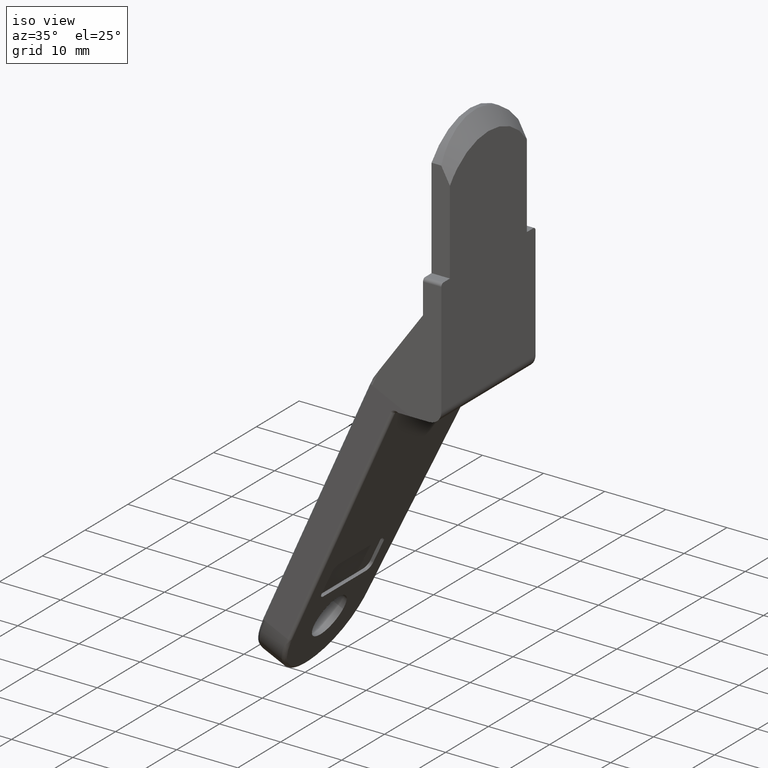
[diagram: clean part render]
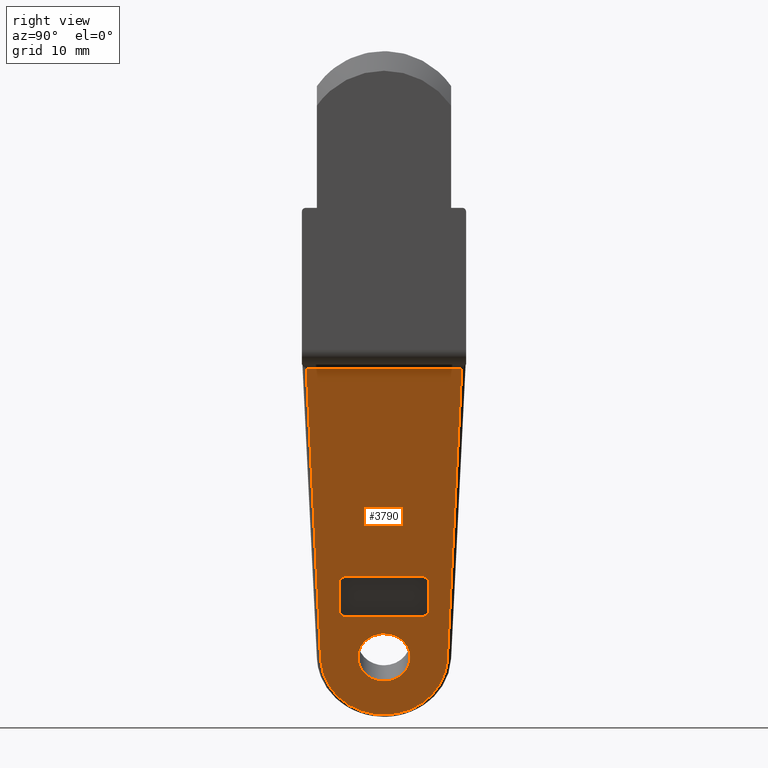
[diagram: tour spotlight — one face highlighted and labeled with its STEP entity id]
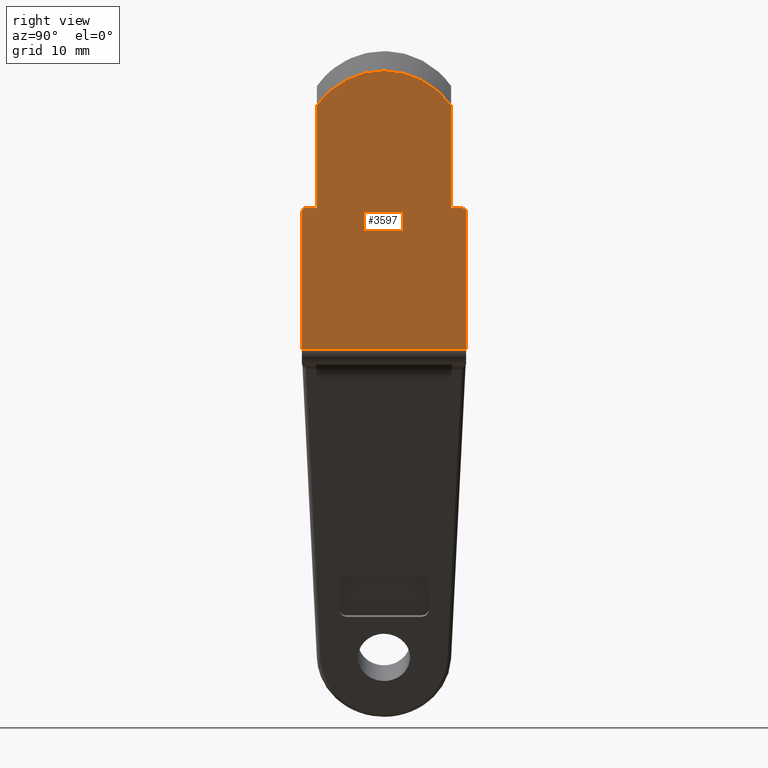
[diagram: tour spotlight — one face highlighted and labeled with its STEP entity id]
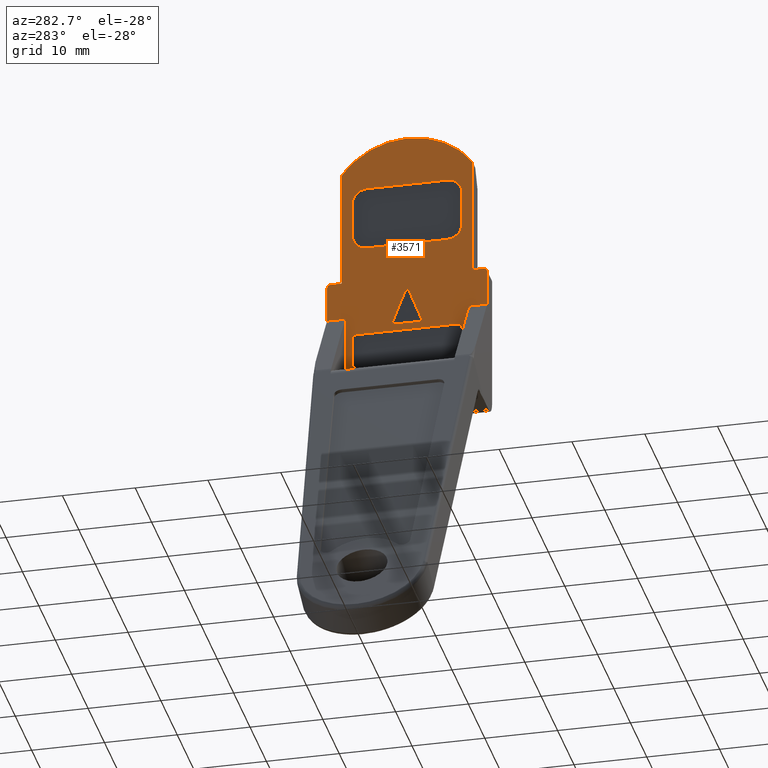
[diagram: tour spotlight — one face highlighted and labeled with its STEP entity id]
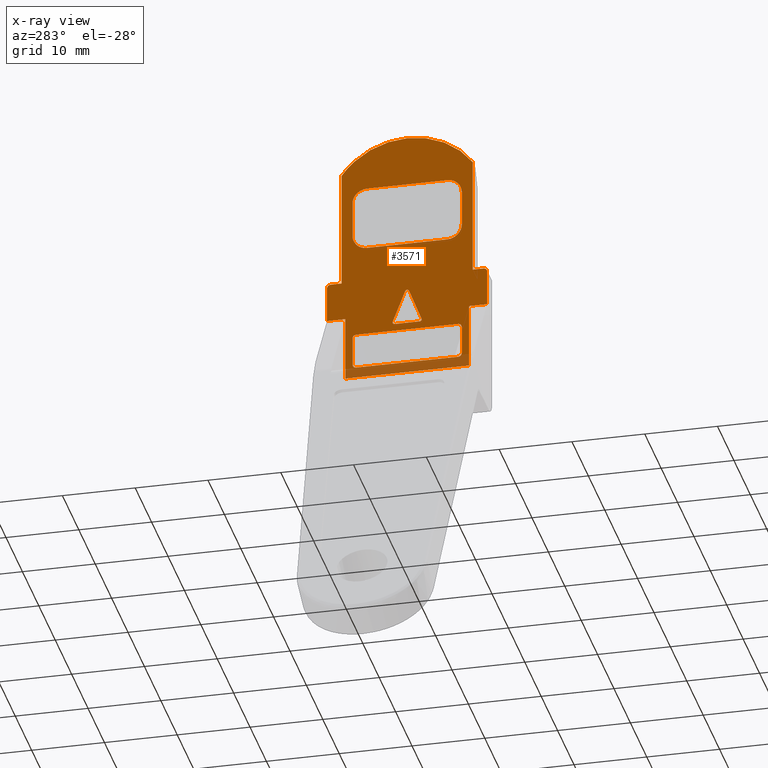
[diagram: x-ray of the same camera — body ghosted, this tour face saturated]
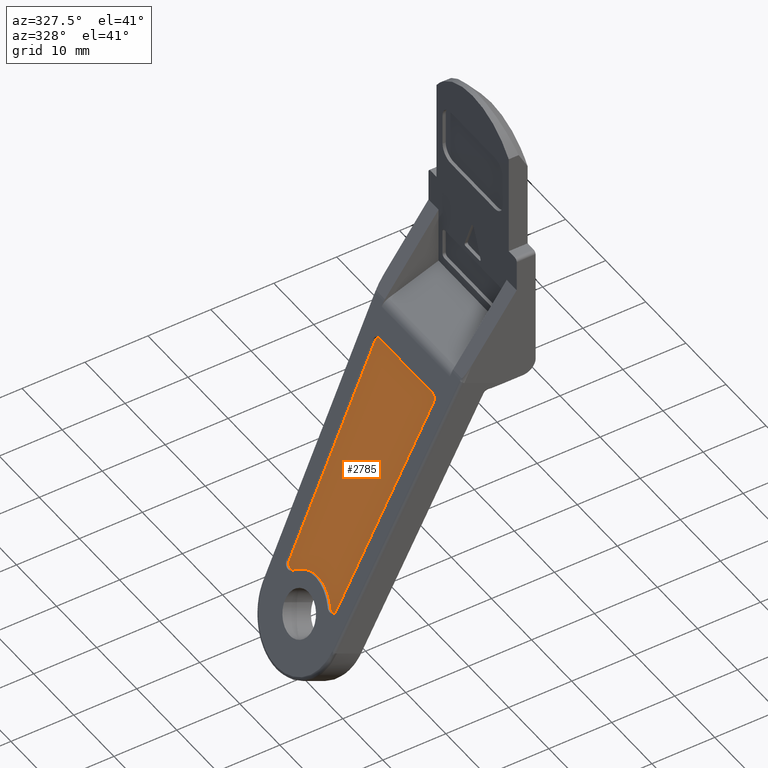
[diagram: tour spotlight — one face highlighted and labeled with its STEP entity id]
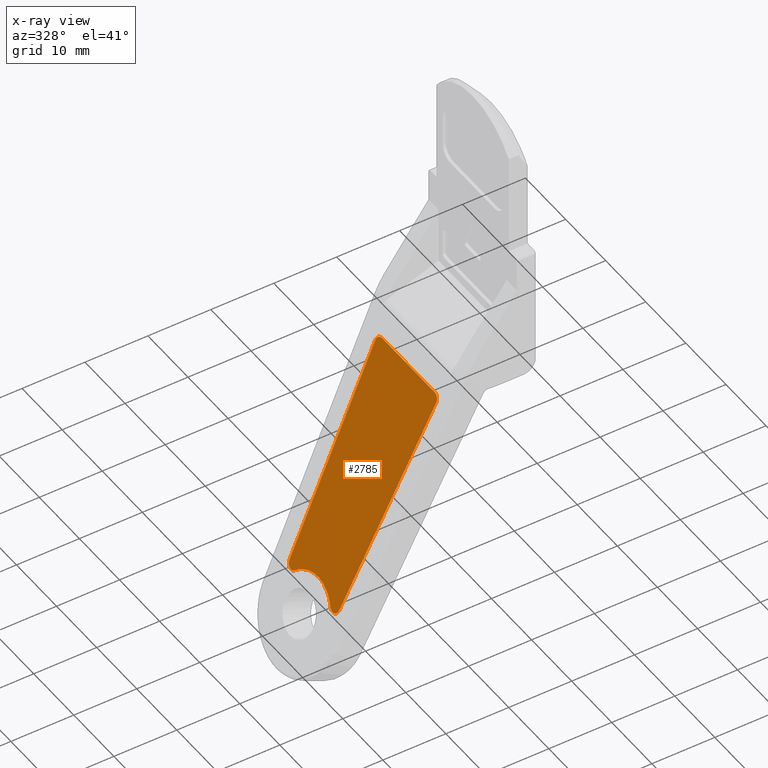
[diagram: x-ray of the same camera — body ghosted, this tour face saturated]
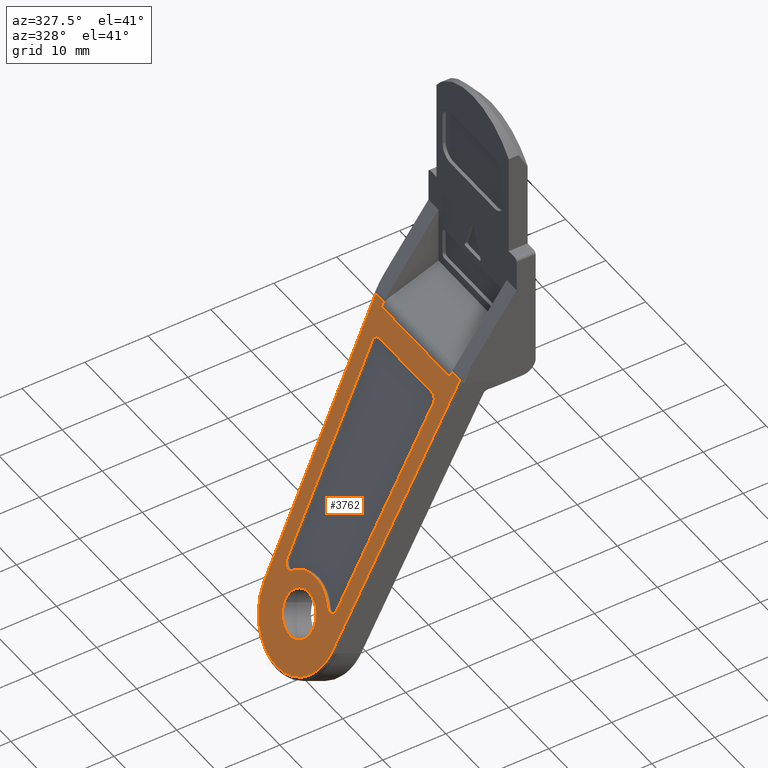
[diagram: tour spotlight — one face highlighted and labeled with its STEP entity id]
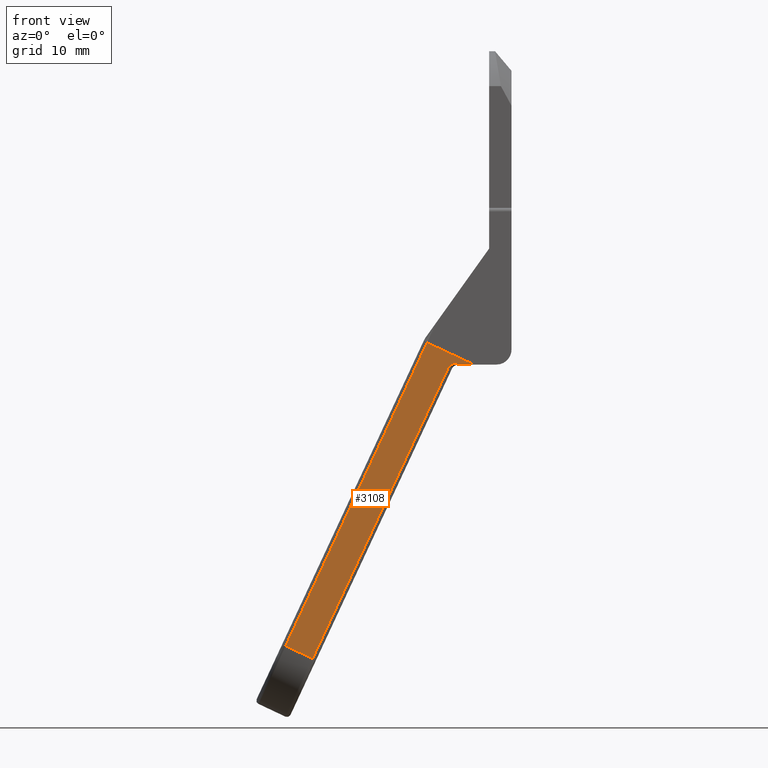
[diagram: tour spotlight — one face highlighted and labeled with its STEP entity id]
A machine part: a face-by-face anatomy tour. The part has 87 B-rep faces; the first image is the clean iso view, then the 6 largest visible faces are spotlighted one at a time (largest first), each with its STEP entity span.

Face 1 — right view, entity #3790. In plain terms, the highlighted face is a freeform B-spline surface patch.
Definition (entity closure, byte-faithful):
#96=CARTESIAN_POINT('',(-26.012490909142961,-3.499866730721196,-70.216601734261687));
#97=VERTEX_POINT('',#96);
#103=CARTESIAN_POINT('',(-27.504562791070779,-2.842171E-014,-73.416360239026375));
#104=VERTEX_POINT('',#103);
#105=CARTESIAN_POINT('',(-27.504562791070779,-2.842171E-014,-73.416360239026375));
#106=CARTESIAN_POINT('',(-27.504562791070779,-3.500000000000028,-73.416360239026361));
#107=CARTESIAN_POINT('',(-26.025398885637799,-3.500000000000029,-70.244282979427496));
#108=CARTESIAN_POINT('',(-26.018944774430892,-3.500000000000030,-70.230442093157109));
#109=CARTESIAN_POINT('',(-26.012490909142965,-3.499866730721196,-70.216601734261687));
#117=(BOUNDED_CURVE()B_SPLINE_CURVE(2,(#105,#106,#107,#108,#109),.UNSPECIFIED.,.F.,.U.)B_SPLINE_CURVE_WITH_KNOTS((3,2,3),(0.500000000000000,0.750000000000000,0.751539894374566),.UNSPECIFIED.)CURVE()GEOMETRIC_REPRESENTATION_ITEM()RATIONAL_B_SPLINE_CURVE((1.0,0.707106781186547,1.0,0.998195901520002,0.996414028008809))REPRESENTATION_ITEM(''));
#118=EDGE_CURVE('',#104,#97,#117,.T.);
#120=CARTESIAN_POINT('',(-26.209004546041339,3.472931748367588,-70.638026592262094));
#121=VERTEX_POINT('',#120);
#122=CARTESIAN_POINT('',(-26.209004546041349,3.472931748367588,-70.638026592262094));
#123=CARTESIAN_POINT('',(-27.504562791070786,3.089445100213763,-73.416360239026375));
#124=CARTESIAN_POINT('',(-27.504562791070779,-2.842171E-014,-73.416360239026375));
#132=(BOUNDED_CURVE()B_SPLINE_CURVE(2,(#122,#123,#124),.UNSPECIFIED.,.F.,.U.)B_SPLINE_CURVE_WITH_KNOTS((3,3),(0.271473928987601,0.500000000000000),.UNSPECIFIED.)CURVE()GEOMETRIC_REPRESENTATION_ITEM()RATIONAL_B_SPLINE_CURVE((0.954005430241922,0.732265053913548,1.0))REPRESENTATION_ITEM(''));
#133=EDGE_CURVE('',#121,#104,#132,.T.);
#183=CARTESIAN_POINT('',(-24.546234980204812,-2.842171E-014,-67.072205719828631));
#184=VERTEX_POINT('',#183);
#185=CARTESIAN_POINT('',(-24.546234980204812,-2.842171E-014,-67.072205719828631));
#186=CARTESIAN_POINT('',(-24.546234980204812,3.499999999999972,-67.072205719828631));
#187=CARTESIAN_POINT('',(-26.025398885637799,3.499999999999972,-70.244282979427496));
#188=CARTESIAN_POINT('',(-26.117558085650362,3.499999999999971,-70.441919023377011));
#189=CARTESIAN_POINT('',(-26.209004546041342,3.472931748367588,-70.638026592262094));
#197=(BOUNDED_CURVE()B_SPLINE_CURVE(2,(#185,#186,#187,#188,#189),.UNSPECIFIED.,.F.,.U.)B_SPLINE_CURVE_WITH_KNOTS((3,2,3),(0.0,0.250000000000000,0.271473928987601),.UNSPECIFIED.)CURVE()GEOMETRIC_REPRESENTATION_ITEM()RATIONAL_B_SPLINE_CURVE((1.0,0.707106781186547,1.0,0.974841727273000,0.954005430241922))REPRESENTATION_ITEM(''));
#198=EDGE_CURVE('',#184,#121,#197,.T.);
#200=CARTESIAN_POINT('',(-26.012490909142961,-3.499866730721196,-70.216601734261687));
#201=CARTESIAN_POINT('',(-24.546234980204808,-3.469589236302831,-67.072205719828631));
#202=CARTESIAN_POINT('',(-24.546234980204812,-2.842171E-014,-67.072205719828631));
#210=(BOUNDED_CURVE()B_SPLINE_CURVE(2,(#200,#201,#202),.UNSPECIFIED.,.F.,.U.)B_SPLINE_CURVE_WITH_KNOTS((3,3),(0.751539894374565,1.0),.UNSPECIFIED.)CURVE()GEOMETRIC_REPRESENTATION_ITEM()RATIONAL_B_SPLINE_CURVE((0.996414028008811,0.708910879666544,1.0))REPRESENTATION_ITEM(''));
#211=EDGE_CURVE('',#97,#184,#210,.T.);
#824=CARTESIAN_POINT('',(-7.994726999999900,-10.419376496762281,-31.577382000000100));
#825=VERTEX_POINT('',#824);
#879=CARTESIAN_POINT('',(-26.186128600836650,-8.491487356595801,-70.588968969027192));
#880=VERTEX_POINT('',#879);
#896=CARTESIAN_POINT('',(-7.994726999999900,-10.419376496762281,-31.577382000000100));
#897=CARTESIAN_POINT('',(-26.186128600836650,-8.491487356595801,-70.588968969027192));
#898=QUASI_UNIFORM_CURVE('',1,(#896,#897),.UNSPECIFIED.,.F.,.U.);
#899=EDGE_CURVE('',#825,#880,#898,.T.);
#935=CARTESIAN_POINT('',(-26.186128600836650,8.491487356595739,-70.588968969027192));
#936=VERTEX_POINT('',#935);
#950=CARTESIAN_POINT('',(-26.186128600836629,-8.491487356595799,-70.588968969027206));
#951=CARTESIAN_POINT('',(-29.617654084546434,-8.127821001500655,-77.947899181310547));
#952=CARTESIAN_POINT('',(-29.617654084546430,-2.842171E-014,-77.947899181310547));
#953=CARTESIAN_POINT('',(-29.617654084546434,8.127821001500596,-77.947899181310547));
#954=CARTESIAN_POINT('',(-26.186128600836629,8.491487356595743,-70.588968969027206));
#962=(BOUNDED_CURVE()B_SPLINE_CURVE(2,(#950,#951,#952,#953,#954),.UNSPECIFIED.,.F.,.U.)B_SPLINE_CURVE_WITH_KNOTS((3,2,3),(0.0,0.500000000000000,1.0),.UNSPECIFIED.)CURVE()GEOMETRIC_REPRESENTATION_ITEM()RATIONAL_B_SPLINE_CURVE((1.0,0.722752862704322,1.0,0.722752862704322,1.0))REPRESENTATION_ITEM(''));
#963=EDGE_CURVE('',#880,#936,#962,.T.);
#1000=CARTESIAN_POINT('',(-7.994726999999900,10.419376496784260,-31.577382000000100));
#1001=VERTEX_POINT('',#1000);
#1011=CARTESIAN_POINT('',(-26.186128600836650,8.491487356595739,-70.588968969027192));
#1012=CARTESIAN_POINT('',(-7.994726999999900,10.419376496784260,-31.577382000000100));
#1013=QUASI_UNIFORM_CURVE('',1,(#1011,#1012),.UNSPECIFIED.,.F.,.U.);
#1014=EDGE_CURVE('',#936,#1001,#1013,.T.);
#2431=CARTESIAN_POINT('',(-21.376598039991350,6.0,-60.274897306402600));
#2432=VERTEX_POINT('',#2431);
#2433=CARTESIAN_POINT('',(-23.067071074771800,5.999999999999901,-63.900128460229801));
#2434=VERTEX_POINT('',#2433);
#2435=CARTESIAN_POINT('',(-21.376598039991350,6.0,-60.274897306402600));
#2436=CARTESIAN_POINT('',(-23.067071074771800,5.999999999999901,-63.900128460229801));
#2437=QUASI_UNIFORM_CURVE('',1,(#2435,#2436),.UNSPECIFIED.,.F.,.U.);
#2438=EDGE_CURVE('',#2432,#2434,#2437,.T.);
#2468=CARTESIAN_POINT('',(-20.953979781296098,5.0,-59.368589517945800));
#2469=VERTEX_POINT('',#2468);
#2470=CARTESIAN_POINT('',(-20.953979781296209,5.0,-59.368589517945793));
#2471=CARTESIAN_POINT('',(-20.953979781296209,6.0,-59.368589517945800));
#2472=CARTESIAN_POINT('',(-21.376598039991350,6.0,-60.274897306402600));
#2480=(BOUNDED_CURVE()B_SPLINE_CURVE(2,(#2470,#2471,#2472),.UNSPECIFIED.,.F.,.U.)CURVE()GEOMETRIC_REPRESENTATION_ITEM()QUASI_UNIFORM_CURVE()RATIONAL_B_SPLINE_CURVE((1.0,0.707106781186548,1.0))REPRESENTATION_ITEM(''));
#2481=EDGE_CURVE('',#2469,#2432,#2480,.T.);
#2498=CARTESIAN_POINT('',(-20.953979781296098,-5.0,-59.368589517945800));
#2499=VERTEX_POINT('',#2498);
#2500=CARTESIAN_POINT('',(-20.953979781296098,-5.0,-59.368589517945800));
#2501=CARTESIAN_POINT('',(-20.953979781296098,5.0,-59.368589517945800));
#2502=QUASI_UNIFORM_CURVE('',1,(#2500,#2501),.UNSPECIFIED.,.F.,.U.);
#2503=EDGE_CURVE('',#2499,#2469,#2502,.T.);
#2529=CARTESIAN_POINT('',(-21.376598039991350,-6.0,-60.274897306402600));
#2530=VERTEX_POINT('',#2529);
#2531=CARTESIAN_POINT('',(-21.376598039991350,-6.0,-60.274897306402600));
#2532=CARTESIAN_POINT('',(-20.953979781296209,-6.0,-59.368589517945800));
#2533=CARTESIAN_POINT('',(-20.953979781296209,-5.0,-59.368589517945793));
#2541=(BOUNDED_CURVE()B_SPLINE_CURVE(2,(#2531,#2532,#2533),.UNSPECIFIED.,.F.,.U.)CURVE()GEOMETRIC_REPRESENTATION_ITEM()QUASI_UNIFORM_CURVE()RATIONAL_B_SPLINE_CURVE((1.0,0.707106781186548,1.0))REPRESENTATION_ITEM(''));
#2542=EDGE_CURVE('',#2530,#2499,#2541,.T.);
#2559=CARTESIAN_POINT('',(-23.067071074771899,-6.0,-63.900128460229801));
#2560=VERTEX_POINT('',#2559);
#2561=CARTESIAN_POINT('',(-23.067071074771899,-6.0,-63.900128460229801));
#2562=CARTESIAN_POINT('',(-21.376598039991350,-6.0,-60.274897306402600));
#2563=QUASI_UNIFORM_CURVE('',1,(#2561,#2562),.UNSPECIFIED.,.F.,.U.);
#2564=EDGE_CURVE('',#2560,#2530,#2563,.T.);
#2590=CARTESIAN_POINT('',(-23.489689333466949,-5.0,-64.806436248686694));
#2591=VERTEX_POINT('',#2590);
#2592=CARTESIAN_POINT('',(-23.489689333467041,-5.0,-64.806436248686623));
#2593=CARTESIAN_POINT('',(-23.489689333467044,-6.0,-64.806436248686623));
#2594=CARTESIAN_POINT('',(-23.067071074771899,-6.0,-63.900128460229801));
#2602=(BOUNDED_CURVE()B_SPLINE_CURVE(2,(#2592,#2593,#2594),.UNSPECIFIED.,.F.,.U.)CURVE()GEOMETRIC_REPRESENTATION_ITEM()QUASI_UNIFORM_CURVE()RATIONAL_B_SPLINE_CURVE((1.0,0.707106781186548,1.0))REPRESENTATION_ITEM(''));
#2603=EDGE_CURVE('',#2591,#2560,#2602,.T.);
#2620=CARTESIAN_POINT('',(-23.489689333466949,5.0,-64.806436248686694));
#2621=VERTEX_POINT('',#2620);
#2622=CARTESIAN_POINT('',(-23.489689333466949,5.0,-64.806436248686694));
#2623=CARTESIAN_POINT('',(-23.489689333466949,-5.0,-64.806436248686694));
#2624=QUASI_UNIFORM_CURVE('',1,(#2622,#2623),.UNSPECIFIED.,.F.,.U.);
#2625=EDGE_CURVE('',#2621,#2591,#2624,.T.);
#2651=CARTESIAN_POINT('',(-23.067071074771899,6.0,-63.900128460229801));
#2652=CARTESIAN_POINT('',(-23.242125289229918,6.0,-64.275533437892975));
#2653=CARTESIAN_POINT('',(-23.365907311348479,5.707106781186563,-64.540984843289777));
#2654=CARTESIAN_POINT('',(-23.489689333467034,5.414213562373107,-64.806436248686623));
#2655=CARTESIAN_POINT('',(-23.489689333467041,5.0,-64.806436248686623));
#2663=(BOUNDED_CURVE()B_SPLINE_CURVE(2,(#2651,#2652,#2653,#2654,#2655),.UNSPECIFIED.,.F.,.U.)B_SPLINE_CURVE_WITH_KNOTS((3,2,3),(0.0,0.500000000000000,1.0),.UNSPECIFIED.)CURVE()GEOMETRIC_REPRESENTATION_ITEM()RATIONAL_B_SPLINE_CURVE((1.0,0.923879532511291,1.0,0.923879532511291,1.0))REPRESENTATION_ITEM(''));
#2664=EDGE_CURVE('',#2434,#2621,#2663,.T.);
#3720=CARTESIAN_POINT('',(-7.994726999999900,-10.419376496762281,-31.577382000000100));
#3721=CARTESIAN_POINT('',(-7.994726999999900,10.419376496784260,-31.577382000000100));
#3722=QUASI_UNIFORM_CURVE('',1,(#3720,#3721),.UNSPECIFIED.,.F.,.U.);
#3723=EDGE_CURVE('',#825,#1001,#3722,.T.);
#3763=CARTESIAN_POINT('',(-30.697719250510101,-11.460272168400380,-80.264106424641909));
#3764=CARTESIAN_POINT('',(-6.914661254064118,-11.460272168400380,-29.261173512914510));
#3765=CARTESIAN_POINT('',(-30.697719250510101,11.460272727361270,-80.264106424641909));
#3766=CARTESIAN_POINT('',(-6.914661254064118,11.460272727361270,-29.261173512914510));
#3767=B_SPLINE_SURFACE_WITH_KNOTS('',1,1,((#3763,#3765),(#3764,#3766)),.UNSPECIFIED.,.F.,.F.,.U.,(2,2),(2,2),(0.0,56.275509888942622),(0.0,22.920544895761662),.UNSPECIFIED.);
#3768=ORIENTED_EDGE('',*,*,#3723,.F.);
#3769=ORIENTED_EDGE('',*,*,#899,.T.);
#3770=ORIENTED_EDGE('',*,*,#963,.T.);
#3771=ORIENTED_EDGE('',*,*,#1014,.T.);
#3772=EDGE_LOOP('',(#3768,#3769,#3770,#3771));
#3773=FACE_OUTER_BOUND('',#3772,.T.);
#3774=ORIENTED_EDGE('',*,*,#2664,.T.);
#3775=ORIENTED_EDGE('',*,*,#2625,.T.);
#3776=ORIENTED_EDGE('',*,*,#2603,.T.);
#3777=ORIENTED_EDGE('',*,*,#2564,.T.);
#3778=ORIENTED_EDGE('',*,*,#2542,.T.);
#3779=ORIENTED_EDGE('',*,*,#2503,.T.);
#3780=ORIENTED_EDGE('',*,*,#2481,.T.);
#3781=ORIENTED_EDGE('',*,*,#2438,.T.);
#3782=EDGE_LOOP('',(#3774,#3775,#3776,#3777,#3778,#3779,#3780,#3781));
#3783=FACE_BOUND('',#3782,.T.);
#3784=ORIENTED_EDGE('',*,*,#118,.T.);
#3785=ORIENTED_EDGE('',*,*,#211,.T.);
#3786=ORIENTED_EDGE('',*,*,#198,.T.);
#3787=ORIENTED_EDGE('',*,*,#133,.T.);
#3788=EDGE_LOOP('',(#3784,#3785,#3786,#3787));
#3789=FACE_BOUND('',#3788,.T.);
#3790=ADVANCED_FACE('',(#3773,#3783,#3789),#3767,.F.);

Face 2 — right view, entity #3597. In plain terms, the highlighted face is a freeform B-spline surface patch.
Definition (entity closure, byte-faithful):
#1109=CARTESIAN_POINT('',(0.0,-11.0,-10.500000000000000));
#1110=VERTEX_POINT('',#1109);
#1116=CARTESIAN_POINT('',(0.0,-10.500000000000000,-10.0));
#1117=VERTEX_POINT('',#1116);
#1118=CARTESIAN_POINT('',(0.0,-10.500000000000000,-10.0));
#1119=CARTESIAN_POINT('',(0.0,-11.000000000000002,-10.000000000000002));
#1120=CARTESIAN_POINT('',(0.0,-11.0,-10.500000000000000));
#1128=(BOUNDED_CURVE()B_SPLINE_CURVE(2,(#1118,#1119,#1120),.UNSPECIFIED.,.F.,.U.)CURVE()GEOMETRIC_REPRESENTATION_ITEM()QUASI_UNIFORM_CURVE()RATIONAL_B_SPLINE_CURVE((1.0,0.707106781186548,1.0))REPRESENTATION_ITEM(''));
#1129=EDGE_CURVE('',#1117,#1110,#1128,.T.);
#1170=CARTESIAN_POINT('',(0.0,10.500000000000000,-10.0));
#1171=VERTEX_POINT('',#1170);
#1177=CARTESIAN_POINT('',(0.0,11.0,-10.500000000000000));
#1178=VERTEX_POINT('',#1177);
#1179=CARTESIAN_POINT('',(0.0,11.0,-10.500000000000000));
#1180=CARTESIAN_POINT('',(0.0,11.000000000000002,-10.000000000000002));
#1181=CARTESIAN_POINT('',(0.0,10.500000000000000,-10.0));
#1189=(BOUNDED_CURVE()B_SPLINE_CURVE(2,(#1179,#1180,#1181),.UNSPECIFIED.,.F.,.U.)CURVE()GEOMETRIC_REPRESENTATION_ITEM()QUASI_UNIFORM_CURVE()RATIONAL_B_SPLINE_CURVE((1.0,0.707106781186548,1.0))REPRESENTATION_ITEM(''));
#1190=EDGE_CURVE('',#1178,#1171,#1189,.T.);
#2230=CARTESIAN_POINT('',(0.0,9.0,3.702697320336655));
#2231=VERTEX_POINT('',#2230);
#2299=CARTESIAN_POINT('',(0.0,-9.0,3.702697320336695));
#2300=VERTEX_POINT('',#2299);
#2312=CARTESIAN_POINT('',(0.0,9.0,3.702697320336655));
#2313=CARTESIAN_POINT('',(0.0,5.714432386255173,8.378142000000109));
#2314=CARTESIAN_POINT('',(0.0,-1.421085E-014,8.378142000000109));
#2315=CARTESIAN_POINT('',(0.0,-5.714432386255171,8.378142000000109));
#2316=CARTESIAN_POINT('',(0.0,-9.0,3.702697320336695));
#2324=(BOUNDED_CURVE()B_SPLINE_CURVE(2,(#2312,#2313,#2314,#2315,#2316),.UNSPECIFIED.,.F.,.U.)B_SPLINE_CURVE_WITH_KNOTS((3,2,3),(0.0,0.500000000000000,1.0),.UNSPECIFIED.)CURVE()GEOMETRIC_REPRESENTATION_ITEM()RATIONAL_B_SPLINE_CURVE((1.0,0.887400578818849,1.0,0.887400578818849,1.0))REPRESENTATION_ITEM(''));
#2325=EDGE_CURVE('',#2231,#2300,#2324,.T.);
#3263=CARTESIAN_POINT('',(0.0,-9.0,-10.0));
#3264=VERTEX_POINT('',#3263);
#3265=CARTESIAN_POINT('',(0.0,-9.0,-10.0));
#3266=CARTESIAN_POINT('',(0.0,-10.500000000000000,-10.0));
#3267=QUASI_UNIFORM_CURVE('',1,(#3265,#3266),.UNSPECIFIED.,.F.,.U.);
#3268=EDGE_CURVE('',#3264,#1117,#3267,.T.);
#3283=CARTESIAN_POINT('',(0.0,-9.0,3.702697320336695));
#3284=CARTESIAN_POINT('',(0.0,-9.0,-10.0));
#3285=QUASI_UNIFORM_CURVE('',1,(#3283,#3284),.UNSPECIFIED.,.F.,.U.);
#3286=EDGE_CURVE('',#2300,#3264,#3285,.T.);
#3318=CARTESIAN_POINT('',(0.0,9.0,-10.0));
#3319=VERTEX_POINT('',#3318);
#3320=CARTESIAN_POINT('',(0.0,9.0,-10.0));
#3321=CARTESIAN_POINT('',(0.0,9.0,3.702697320336655));
#3322=QUASI_UNIFORM_CURVE('',1,(#3320,#3321),.UNSPECIFIED.,.F.,.U.);
#3323=EDGE_CURVE('',#3319,#2231,#3322,.T.);
#3345=CARTESIAN_POINT('',(0.0,10.500000000000000,-10.0));
#3346=CARTESIAN_POINT('',(0.0,9.0,-10.0));
#3347=QUASI_UNIFORM_CURVE('',1,(#3345,#3346),.UNSPECIFIED.,.F.,.U.);
#3348=EDGE_CURVE('',#1171,#3319,#3347,.T.);
#3438=CARTESIAN_POINT('',(0.0,11.0,-29.0));
#3439=VERTEX_POINT('',#3438);
#3453=CARTESIAN_POINT('',(0.0,-11.0,-29.0));
#3454=VERTEX_POINT('',#3453);
#3455=CARTESIAN_POINT('',(0.0,-11.0,-29.0));
#3456=CARTESIAN_POINT('',(0.0,11.0,-29.0));
#3457=QUASI_UNIFORM_CURVE('',1,(#3455,#3456),.UNSPECIFIED.,.F.,.U.);
#3458=EDGE_CURVE('',#3454,#3439,#3457,.T.);
#3572=CARTESIAN_POINT('',(0.0,-12.098899957359730,-30.867038120453909));
#3573=CARTESIAN_POINT('',(0.0,-12.098899957359730,10.245181123013920));
#3574=CARTESIAN_POINT('',(0.0,12.098900547445711,-30.867038120453909));
#3575=CARTESIAN_POINT('',(0.0,12.098900547445711,10.245181123013920));
#3576=B_SPLINE_SURFACE_WITH_KNOTS('',1,1,((#3572,#3574),(#3573,#3575)),.UNSPECIFIED.,.F.,.F.,.U.,(2,2),(2,2),(0.0,41.112219243467827),(0.0,24.197800504805439),.UNSPECIFIED.);
#3577=CARTESIAN_POINT('',(0.0,11.0,-29.0));
#3578=CARTESIAN_POINT('',(0.0,11.0,-10.500000000000000));
#3579=QUASI_UNIFORM_CURVE('',1,(#3577,#3578),.UNSPECIFIED.,.F.,.U.);
#3580=EDGE_CURVE('',#3439,#1178,#3579,.T.);
#3581=ORIENTED_EDGE('',*,*,#3580,.T.);
#3582=ORIENTED_EDGE('',*,*,#1190,.T.);
#3583=ORIENTED_EDGE('',*,*,#3348,.T.);
#3584=ORIENTED_EDGE('',*,*,#3323,.T.);
#3585=ORIENTED_EDGE('',*,*,#2325,.T.);
#3586=ORIENTED_EDGE('',*,*,#3286,.T.);
#3587=ORIENTED_EDGE('',*,*,#3268,.T.);
#3588=ORIENTED_EDGE('',*,*,#1129,.T.);
#3589=CARTESIAN_POINT('',(0.0,-11.0,-29.0));
#3590=CARTESIAN_POINT('',(0.0,-11.0,-10.500000000000000));
#3591=QUASI_UNIFORM_CURVE('',1,(#3589,#3590),.UNSPECIFIED.,.F.,.U.);
#3592=EDGE_CURVE('',#3454,#1110,#3591,.T.);
#3593=ORIENTED_EDGE('',*,*,#3592,.F.);
#3594=ORIENTED_EDGE('',*,*,#3458,.T.);
#3595=EDGE_LOOP('',(#3581,#3582,#3583,#3584,#3585,#3586,#3587,#3588,#3593,#3594));
#3596=FACE_OUTER_BOUND('',#3595,.T.);
#3597=ADVANCED_FACE('',(#3596),#3576,.F.);

Face 3 — auxiliary view, entity #3571. An x-ray twin of the same camera follows (body ghosted, this face saturated) — the face is partly hidden behind the body. In plain terms, the highlighted face is a freeform B-spline surface patch.
Definition (entity closure, byte-faithful):
#1092=CARTESIAN_POINT('',(-3.0,-11.0,-10.500000000000000));
#1093=VERTEX_POINT('',#1092);
#1094=CARTESIAN_POINT('',(-3.0,-10.500000000000000,-10.0));
#1095=VERTEX_POINT('',#1094);
#1096=CARTESIAN_POINT('',(-3.0,-11.0,-10.500000000000000));
#1097=CARTESIAN_POINT('',(-3.0,-11.000000000000002,-10.000000000000002));
#1098=CARTESIAN_POINT('',(-3.0,-10.500000000000000,-10.0));
#1106=(BOUNDED_CURVE()B_SPLINE_CURVE(2,(#1096,#1097,#1098),.UNSPECIFIED.,.F.,.U.)CURVE()GEOMETRIC_REPRESENTATION_ITEM()QUASI_UNIFORM_CURVE()RATIONAL_B_SPLINE_CURVE((1.0,0.707106781186548,1.0))REPRESENTATION_ITEM(''));
#1107=EDGE_CURVE('',#1093,#1095,#1106,.T.);
#1153=CARTESIAN_POINT('',(-3.0,10.500000000000000,-10.0));
#1154=VERTEX_POINT('',#1153);
#1155=CARTESIAN_POINT('',(-3.0,11.0,-10.500000000000000));
#1156=VERTEX_POINT('',#1155);
#1157=CARTESIAN_POINT('',(-3.0,10.500000000000000,-10.0));
#1158=CARTESIAN_POINT('',(-3.0,11.000000000000002,-10.000000000000002));
#1159=CARTESIAN_POINT('',(-3.0,11.0,-10.500000000000000));
#1167=(BOUNDED_CURVE()B_SPLINE_CURVE(2,(#1157,#1158,#1159),.UNSPECIFIED.,.F.,.U.)CURVE()GEOMETRIC_REPRESENTATION_ITEM()QUASI_UNIFORM_CURVE()RATIONAL_B_SPLINE_CURVE((1.0,0.707106781186548,1.0))REPRESENTATION_ITEM(''));
#1168=EDGE_CURVE('',#1154,#1156,#1167,.T.);
#1359=CARTESIAN_POINT('',(-3.0,-0.279839646613812,-12.191880750173340));
#1360=VERTEX_POINT('',#1359);
#1361=CARTESIAN_POINT('',(-3.0,0.279839440597325,-12.191880216952679));
#1362=VERTEX_POINT('',#1361);
#1363=CARTESIAN_POINT('',(-3.0,-0.279839646613776,-12.191880750173350));
#1364=CARTESIAN_POINT('',(-3.0,-0.205704398707435,-12.000000195979734));
#1365=CARTESIAN_POINT('',(-3.0,-0.000000285817715,-12.000000000000140));
#1366=CARTESIAN_POINT('',(-3.0,0.205703827072005,-11.999999804020538));
#1367=CARTESIAN_POINT('',(-3.0,0.279839440597289,-12.191880216952690));
#1375=(BOUNDED_CURVE()B_SPLINE_CURVE(2,(#1363,#1364,#1365,#1366,#1367),.UNSPECIFIED.,.F.,.U.)B_SPLINE_CURVE_WITH_KNOTS((3,2,3),(0.0,0.500000000000000,1.0),.UNSPECIFIED.)CURVE()GEOMETRIC_REPRESENTATION_ITEM()RATIONAL_B_SPLINE_CURVE((1.0,0.824741895420445,1.0,0.824741895420445,1.0))REPRESENTATION_ITEM(''));
#1376=EDGE_CURVE('',#1360,#1362,#1375,.T.);
#1397=CARTESIAN_POINT('',(-3.0,-1.979839440597330,-16.591880216952699));
#1398=VERTEX_POINT('',#1397);
#1399=CARTESIAN_POINT('',(-3.0,-1.979839440597330,-16.591880216952699));
#1400=CARTESIAN_POINT('',(-3.0,-0.279839646613812,-12.191880750173340));
#1401=QUASI_UNIFORM_CURVE('',1,(#1399,#1400),.UNSPECIFIED.,.F.,.U.);
#1402=EDGE_CURVE('',#1398,#1360,#1401,.T.);
#1428=CARTESIAN_POINT('',(-3.0,-1.700000000000000,-17.0));
#1429=VERTEX_POINT('',#1428);
#1430=CARTESIAN_POINT('',(-3.0,-1.700000000000000,-17.0));
#1431=CARTESIAN_POINT('',(-3.000000000000000,-1.858046142739357,-17.000000000000007));
#1432=CARTESIAN_POINT('',(-3.0,-1.947422649442393,-16.869652682097591));
#1433=CARTESIAN_POINT('',(-3.000000000000000,-2.036799156145429,-16.739305364195182));
#1434=CARTESIAN_POINT('',(-3.0,-1.979839440597296,-16.591880216952710));
#1442=(BOUNDED_CURVE()B_SPLINE_CURVE(2,(#1430,#1431,#1432,#1433,#1434),.UNSPECIFIED.,.F.,.U.)B_SPLINE_CURVE_WITH_KNOTS((3,2,3),(0.0,0.500000000000000,1.0),.UNSPECIFIED.)CURVE()GEOMETRIC_REPRESENTATION_ITEM()RATIONAL_B_SPLINE_CURVE((1.0,0.884734123995822,1.0,0.884734123995822,1.0))REPRESENTATION_ITEM(''));
#1443=EDGE_CURVE('',#1429,#1398,#1442,.T.);
#1460=CARTESIAN_POINT('',(-3.0,1.700000000000000,-17.0));
#1461=VERTEX_POINT('',#1460);
#1462=CARTESIAN_POINT('',(-3.0,1.700000000000000,-17.0));
#1463=CARTESIAN_POINT('',(-3.0,-1.700000000000000,-17.0));
#1464=QUASI_UNIFORM_CURVE('',1,(#1462,#1463),.UNSPECIFIED.,.F.,.U.);
#1465=EDGE_CURVE('',#1461,#1429,#1464,.T.);
#1491=CARTESIAN_POINT('',(-3.0,1.979839440597315,-16.591880216952699));
#1492=VERTEX_POINT('',#1491);
#1493=CARTESIAN_POINT('',(-3.0,1.979839440597294,-16.591880216952710));
#1494=CARTESIAN_POINT('',(-3.000000000000000,2.036799156145431,-16.739305364195175));
#1495=CARTESIAN_POINT('',(-3.0,1.947422649442394,-16.869652682097591));
#1496=CARTESIAN_POINT('',(-3.000000000000000,1.858046142739358,-17.0));
#1497=CARTESIAN_POINT('',(-3.0,1.700000000000000,-17.0));
#1505=(BOUNDED_CURVE()B_SPLINE_CURVE(2,(#1493,#1494,#1495,#1496,#1497),.UNSPECIFIED.,.F.,.U.)B_SPLINE_CURVE_WITH_KNOTS((3,2,3),(0.0,0.500000000000000,1.0),.UNSPECIFIED.)CURVE()GEOMETRIC_REPRESENTATION_ITEM()RATIONAL_B_SPLINE_CURVE((1.0,0.884734123995820,1.0,0.884734123995820,1.0))REPRESENTATION_ITEM(''));
#1506=EDGE_CURVE('',#1492,#1461,#1505,.T.);
#1523=CARTESIAN_POINT('',(-3.0,0.279839440597325,-12.191880216952679));
#1524=CARTESIAN_POINT('',(-3.0,1.979839440597315,-16.591880216952699));
#1525=QUASI_UNIFORM_CURVE('',1,(#1523,#1524),.UNSPECIFIED.,.F.,.U.);
#1526=EDGE_CURVE('',#1362,#1492,#1525,.T.);
#1635=CARTESIAN_POINT('',(-3.0,5.500000000000000,-5.0));
#1636=VERTEX_POINT('',#1635);
#1637=CARTESIAN_POINT('',(-3.0,-5.500000000000000,-5.0));
#1638=VERTEX_POINT('',#1637);
#1639=CARTESIAN_POINT('',(-3.0,5.500000000000000,-5.0));
#1640=CARTESIAN_POINT('',(-3.0,-5.500000000000000,-5.0));
#1641=QUASI_UNIFORM_CURVE('',1,(#1639,#1640),.UNSPECIFIED.,.F.,.U.);
#1642=EDGE_CURVE('',#1636,#1638,#1641,.T.);
#1672=CARTESIAN_POINT('',(-3.0,7.500000000000000,-3.0));
#1673=VERTEX_POINT('',#1672);
#1674=CARTESIAN_POINT('',(-3.0,7.500000000000000,-3.0));
#1675=CARTESIAN_POINT('',(-3.0,7.500000000000000,-5.000000000000001));
#1676=CARTESIAN_POINT('',(-3.0,5.500000000000000,-5.0));
#1684=(BOUNDED_CURVE()B_SPLINE_CURVE(2,(#1674,#1675,#1676),.UNSPECIFIED.,.F.,.U.)CURVE()GEOMETRIC_REPRESENTATION_ITEM()QUASI_UNIFORM_CURVE()RATIONAL_B_SPLINE_CURVE((1.0,0.707106781186548,1.0))REPRESENTATION_ITEM(''));
#1685=EDGE_CURVE('',#1673,#1636,#1684,.T.);
#1702=CARTESIAN_POINT('',(-3.0,7.500000000000000,2.0));
#1703=VERTEX_POINT('',#1702);
#1704=CARTESIAN_POINT('',(-3.0,7.500000000000000,2.0));
#1705=CARTESIAN_POINT('',(-3.0,7.500000000000000,-3.0));
#1706=QUASI_UNIFORM_CURVE('',1,(#1704,#1705),.UNSPECIFIED.,.F.,.U.);
#1707=EDGE_CURVE('',#1703,#1673,#1706,.T.);
#1733=CARTESIAN_POINT('',(-3.0,5.500000000000000,4.0));
#1734=VERTEX_POINT('',#1733);
#1735=CARTESIAN_POINT('',(-3.0,5.500000000000000,4.0));
#1736=CARTESIAN_POINT('',(-3.0,7.500000000000000,4.000000000000000));
#1737=CARTESIAN_POINT('',(-3.0,7.500000000000000,2.0));
#1745=(BOUNDED_CURVE()B_SPLINE_CURVE(2,(#1735,#1736,#1737),.UNSPECIFIED.,.F.,.U.)CURVE()GEOMETRIC_REPRESENTATION_ITEM()QUASI_UNIFORM_CURVE()RATIONAL_B_SPLINE_CURVE((1.0,0.707106781186548,1.0))REPRESENTATION_ITEM(''));
#1746=EDGE_CURVE('',#1734,#1703,#1745,.T.);
#1763=CARTESIAN_POINT('',(-3.0,-5.500000000000000,4.0));
#1764=VERTEX_POINT('',#1763);
#1765=CARTESIAN_POINT('',(-3.0,-5.500000000000000,4.0));
#1766=CARTESIAN_POINT('',(-3.0,5.500000000000000,4.0));
#1767=QUASI_UNIFORM_CURVE('',1,(#1765,#1766),.UNSPECIFIED.,.F.,.U.);
#1768=EDGE_CURVE('',#1764,#1734,#1767,.T.);
#1794=CARTESIAN_POINT('',(-3.0,-7.500000000000000,2.0));
#1795=VERTEX_POINT('',#1794);
#1796=CARTESIAN_POINT('',(-3.0,-7.500000000000000,2.0));
#1797=CARTESIAN_POINT('',(-3.0,-7.500000000000000,4.000000000000000));
#1798=CARTESIAN_POINT('',(-3.0,-5.500000000000000,4.0));
#1806=(BOUNDED_CURVE()B_SPLINE_CURVE(2,(#1796,#1797,#1798),.UNSPECIFIED.,.F.,.U.)CURVE()GEOMETRIC_REPRESENTATION_ITEM()QUASI_UNIFORM_CURVE()RATIONAL_B_SPLINE_CURVE((1.0,0.707106781186548,1.0))REPRESENTATION_ITEM(''));
#1807=EDGE_CURVE('',#1795,#1764,#1806,.T.);
#1824=CARTESIAN_POINT('',(-3.0,-7.500000000000000,-3.0));
#1825=VERTEX_POINT('',#1824);
#1826=CARTESIAN_POINT('',(-3.0,-7.500000000000000,-3.0));
#1827=CARTESIAN_POINT('',(-3.0,-7.500000000000000,2.0));
#1828=QUASI_UNIFORM_CURVE('',1,(#1826,#1827),.UNSPECIFIED.,.F.,.U.);
#1829=EDGE_CURVE('',#1825,#1795,#1828,.T.);
#1855=CARTESIAN_POINT('',(-3.0,-5.500000000000000,-5.0));
#1856=CARTESIAN_POINT('',(-3.0,-7.500000000000000,-5.000000000000001));
#1857=CARTESIAN_POINT('',(-3.0,-7.500000000000000,-3.0));
#1865=(BOUNDED_CURVE()B_SPLINE_CURVE(2,(#1855,#1856,#1857),.UNSPECIFIED.,.F.,.U.)CURVE()GEOMETRIC_REPRESENTATION_ITEM()QUASI_UNIFORM_CURVE()RATIONAL_B_SPLINE_CURVE((1.0,0.707106781186548,1.0))REPRESENTATION_ITEM(''));
#1866=EDGE_CURVE('',#1638,#1825,#1865,.T.);
#1984=CARTESIAN_POINT('',(-3.0,-7.500000000000000,-18.500000000000000));
#1985=VERTEX_POINT('',#1984);
#1986=CARTESIAN_POINT('',(-3.0,-7.0,-18.0));
#1987=VERTEX_POINT('',#1986);
#1988=CARTESIAN_POINT('',(-3.0,-7.500000000000000,-18.500000000000000));
#1989=CARTESIAN_POINT('',(-3.0,-7.500000000000000,-18.000000000000007));
#1990=CARTESIAN_POINT('',(-3.0,-7.0,-18.0));
#1998=(BOUNDED_CURVE()B_SPLINE_CURVE(2,(#1988,#1989,#1990),.UNSPECIFIED.,.F.,.U.)CURVE()GEOMETRIC_REPRESENTATION_ITEM()QUASI_UNIFORM_CURVE()RATIONAL_B_SPLINE_CURVE((1.0,0.707106781186548,1.0))REPRESENTATION_ITEM(''));
#1999=EDGE_CURVE('',#1985,#1987,#1998,.T.);
#2020=CARTESIAN_POINT('',(-3.0,-7.500000000000000,-22.500000000000000));
#2021=VERTEX_POINT('',#2020);
#2022=CARTESIAN_POINT('',(-3.0,-7.500000000000000,-22.500000000000000));
#2023=CARTESIAN_POINT('',(-3.0,-7.500000000000000,-18.500000000000000));
#2024=QUASI_UNIFORM_CURVE('',1,(#2022,#2023),.UNSPECIFIED.,.F.,.U.);
#2025=EDGE_CURVE('',#2021,#1985,#2024,.T.);
#2051=CARTESIAN_POINT('',(-3.0,-7.0,-23.0));
#2052=VERTEX_POINT('',#2051);
#2053=CARTESIAN_POINT('',(-3.0,-7.0,-23.0));
#2054=CARTESIAN_POINT('',(-3.0,-7.500000000000000,-22.999999999999993));
#2055=CARTESIAN_POINT('',(-3.0,-7.500000000000000,-22.500000000000000));
#2063=(BOUNDED_CURVE()B_SPLINE_CURVE(2,(#2053,#2054,#2055),.UNSPECIFIED.,.F.,.U.)CURVE()GEOMETRIC_REPRESENTATION_ITEM()QUASI_UNIFORM_CURVE()RATIONAL_B_SPLINE_CURVE((1.0,0.707106781186548,1.0))REPRESENTATION_ITEM(''));
#2064=EDGE_CURVE('',#2052,#2021,#2063,.T.);
#2081=CARTESIAN_POINT('',(-3.0,7.0,-23.0));
#2082=VERTEX_POINT('',#2081);
#2083=CARTESIAN_POINT('',(-3.0,7.0,-23.0));
#2084=CARTESIAN_POINT('',(-3.0,-7.0,-23.0));
#2085=QUASI_UNIFORM_CURVE('',1,(#2083,#2084),.UNSPECIFIED.,.F.,.U.);
#2086=EDGE_CURVE('',#2082,#2052,#2085,.T.);
#2112=CARTESIAN_POINT('',(-3.0,7.500000000000000,-22.500000000000000));
#2113=VERTEX_POINT('',#2112);
#2114=CARTESIAN_POINT('',(-3.0,7.500000000000000,-22.500000000000000));
#2115=CARTESIAN_POINT('',(-3.0,7.500000000000000,-22.999999999999993));
#2116=CARTESIAN_POINT('',(-3.0,7.0,-23.0));
#2124=(BOUNDED_CURVE()B_SPLINE_CURVE(2,(#2114,#2115,#2116),.UNSPECIFIED.,.F.,.U.)CURVE()GEOMETRIC_REPRESENTATION_ITEM()QUASI_UNIFORM_CURVE()RATIONAL_B_SPLINE_CURVE((1.0,0.707106781186548,1.0))REPRESENTATION_ITEM(''));
#2125=EDGE_CURVE('',#2113,#2082,#2124,.T.);
#2142=CARTESIAN_POINT('',(-3.0,7.500000000000000,-18.500000000000000));
#2143=VERTEX_POINT('',#2142);
#2144=CARTESIAN_POINT('',(-3.0,7.500000000000000,-18.500000000000000));
#2145=CARTESIAN_POINT('',(-3.0,7.500000000000000,-22.500000000000000));
#2146=QUASI_UNIFORM_CURVE('',1,(#2144,#2145),.UNSPECIFIED.,.F.,.U.);
#2147=EDGE_CURVE('',#2143,#2113,#2146,.T.);
#2173=CARTESIAN_POINT('',(-3.0,7.0,-18.0));
#2174=VERTEX_POINT('',#2173);
#2175=CARTESIAN_POINT('',(-3.0,7.0,-18.0));
#2176=CARTESIAN_POINT('',(-3.0,7.500000000000000,-18.000000000000007));
#2177=CARTESIAN_POINT('',(-3.0,7.500000000000000,-18.500000000000000));
#2185=(BOUNDED_CURVE()B_SPLINE_CURVE(2,(#2175,#2176,#2177),.UNSPECIFIED.,.F.,.U.)CURVE()GEOMETRIC_REPRESENTATION_ITEM()QUASI_UNIFORM_CURVE()RATIONAL_B_SPLINE_CURVE((1.0,0.707106781186548,1.0))REPRESENTATION_ITEM(''));
#2186=EDGE_CURVE('',#2174,#2143,#2185,.T.);
#2203=CARTESIAN_POINT('',(-3.0,-7.0,-18.0));
#2204=CARTESIAN_POINT('',(-3.0,7.0,-18.0));
#2205=QUASI_UNIFORM_CURVE('',1,(#2203,#2204),.UNSPECIFIED.,.F.,.U.);
#2206=EDGE_CURVE('',#1987,#2174,#2205,.T.);
#3156=CARTESIAN_POINT('',(-3.0,-8.500000000000000,-15.462337000000000));
#3157=VERTEX_POINT('',#3156);
#3163=CARTESIAN_POINT('',(-3.0,-8.500000000000000,-24.500000000000000));
#3164=VERTEX_POINT('',#3163);
#3165=CARTESIAN_POINT('',(-3.0,-8.500000000000000,-15.462337000000000));
#3166=CARTESIAN_POINT('',(-3.0,-8.500000000000000,-24.500000000000000));
#3167=QUASI_UNIFORM_CURVE('',1,(#3165,#3166),.UNSPECIFIED.,.F.,.U.);
#3168=EDGE_CURVE('',#3157,#3164,#3167,.T.);
#3189=CARTESIAN_POINT('',(-3.0,8.500000000000000,-24.500000000000000));
#3190=VERTEX_POINT('',#3189);
#3196=CARTESIAN_POINT('',(-3.0,8.500000000000000,-15.462337000000000));
#3197=VERTEX_POINT('',#3196);
#3198=CARTESIAN_POINT('',(-3.0,8.500000000000000,-15.462337000000000));
#3199=CARTESIAN_POINT('',(-3.0,8.500000000000000,-24.500000000000000));
#3200=QUASI_UNIFORM_CURVE('',1,(#3198,#3199),.UNSPECIFIED.,.F.,.U.);
#3201=EDGE_CURVE('',#3197,#3190,#3200,.T.);
#3242=CARTESIAN_POINT('',(-3.0,8.500000000000000,-24.500000000000000));
#3243=CARTESIAN_POINT('',(-3.0,-8.500000000000000,-24.500000000000000));
#3244=QUASI_UNIFORM_CURVE('',1,(#3242,#3243),.UNSPECIFIED.,.F.,.U.);
#3245=EDGE_CURVE('',#3190,#3164,#3244,.T.);
#3255=CARTESIAN_POINT('',(-3.0,-9.0,-10.0));
#3256=VERTEX_POINT('',#3255);
#3257=CARTESIAN_POINT('',(-3.0,-9.0,-10.0));
#3258=CARTESIAN_POINT('',(-3.0,-10.500000000000000,-10.0));
#3259=QUASI_UNIFORM_CURVE('',1,(#3257,#3258),.UNSPECIFIED.,.F.,.U.);
#3260=EDGE_CURVE('',#3256,#1095,#3259,.T.);
#3289=CARTESIAN_POINT('',(-3.0,-9.000000025121768,6.324555284587849));
#3290=VERTEX_POINT('',#3289);
#3296=CARTESIAN_POINT('',(-3.0,-9.000000025121768,6.324555284587849));
#3297=CARTESIAN_POINT('',(-3.0,-9.0,-10.0));
#3298=QUASI_UNIFORM_CURVE('',1,(#3296,#3297),.UNSPECIFIED.,.F.,.U.);
#3299=EDGE_CURVE('',#3290,#3256,#3298,.T.);
#3310=CARTESIAN_POINT('',(-3.0,9.000000025121729,6.324555284587900));
#3311=VERTEX_POINT('',#3310);
#3325=CARTESIAN_POINT('',(-3.0,9.0,-10.0));
#3326=VERTEX_POINT('',#3325);
#3332=CARTESIAN_POINT('',(-3.0,9.0,-10.0));
#3333=CARTESIAN_POINT('',(-3.0,9.000000025121729,6.324555284587900));
#3334=QUASI_UNIFORM_CURVE('',1,(#3332,#3333),.UNSPECIFIED.,.F.,.U.);
#3335=EDGE_CURVE('',#3326,#3311,#3334,.T.);
#3351=CARTESIAN_POINT('',(-3.0,10.500000000000000,-10.0));
#3352=CARTESIAN_POINT('',(-3.0,9.0,-10.0));
#3353=QUASI_UNIFORM_CURVE('',1,(#3351,#3352),.UNSPECIFIED.,.F.,.U.);
#3354=EDGE_CURVE('',#1154,#3326,#3353,.T.);
#3376=CARTESIAN_POINT('',(-3.0,-9.000000025121768,6.324555284587853));
#3377=CARTESIAN_POINT('',(-3.0,-5.714432413997439,11.0));
#3378=CARTESIAN_POINT('',(-3.0,0.0,11.0));
#3379=CARTESIAN_POINT('',(-3.0,5.714432413997400,11.0));
#3380=CARTESIAN_POINT('',(-3.0,9.000000025121734,6.324555284587903));
#3388=(BOUNDED_CURVE()B_SPLINE_CURVE(2,(#3376,#3377,#3378,#3379,#3380),.UNSPECIFIED.,.F.,.U.)B_SPLINE_CURVE_WITH_KNOTS((3,2,3),(0.0,0.500000000000000,1.0),.UNSPECIFIED.)CURVE()GEOMETRIC_REPRESENTATION_ITEM()RATIONAL_B_SPLINE_CURVE((1.0,0.887400577903285,1.0,0.887400577903285,1.0))REPRESENTATION_ITEM(''));
#3389=EDGE_CURVE('',#3290,#3311,#3388,.T.);
#3400=CARTESIAN_POINT('',(-3.0,11.0,-15.462337000000000));
#3401=VERTEX_POINT('',#3400);
#3414=CARTESIAN_POINT('',(-3.0,8.500000000000000,-15.462337000000000));
#3415=CARTESIAN_POINT('',(-3.0,11.0,-15.462337000000000));
#3416=QUASI_UNIFORM_CURVE('',1,(#3414,#3415),.UNSPECIFIED.,.F.,.U.);
#3417=EDGE_CURVE('',#3197,#3401,#3416,.T.);
#3508=CARTESIAN_POINT('',(-3.0,-12.098899957359730,12.773224931194109));
#3509=CARTESIAN_POINT('',(-3.0,-12.098899957359730,-26.273225883378309));
#3510=CARTESIAN_POINT('',(-3.0,12.098900547445711,12.773224931194109));
#3511=CARTESIAN_POINT('',(-3.0,12.098900547445711,-26.273225883378309));
#3512=B_SPLINE_SURFACE_WITH_KNOTS('',1,1,((#3508,#3510),(#3509,#3511)),.UNSPECIFIED.,.F.,.F.,.U.,(2,2),(2,2),(0.0,39.046450814572417),(0.0,24.197800504805439),.UNSPECIFIED.);
#3513=ORIENTED_EDGE('',*,*,#3354,.F.);
#3514=ORIENTED_EDGE('',*,*,#1168,.T.);
#3515=CARTESIAN_POINT('',(-3.0,11.0,-10.500000000000000));
#3516=CARTESIAN_POINT('',(-3.0,11.0,-15.462337000000000));
#3517=QUASI_UNIFORM_CURVE('',1,(#3515,#3516),.UNSPECIFIED.,.F.,.U.);
#3518=EDGE_CURVE('',#1156,#3401,#3517,.T.);
#3519=ORIENTED_EDGE('',*,*,#3518,.T.);
#3520=ORIENTED_EDGE('',*,*,#3417,.F.);
#3521=ORIENTED_EDGE('',*,*,#3201,.T.);
#3522=ORIENTED_EDGE('',*,*,#3245,.T.);
#3523=ORIENTED_EDGE('',*,*,#3168,.F.);
#3524=CARTESIAN_POINT('',(-3.0,-11.0,-15.462337000000000));
#3525=VERTEX_POINT('',#3524);
#3526=CARTESIAN_POINT('',(-3.0,-11.0,-15.462337000000000));
#3527=CARTESIAN_POINT('',(-3.0,-8.500000000000000,-15.462337000000000));
#3528=QUASI_UNIFORM_CURVE('',1,(#3526,#3527),.UNSPECIFIED.,.F.,.U.);
#3529=EDGE_CURVE('',#3525,#3157,#3528,.T.);
#3530=ORIENTED_EDGE('',*,*,#3529,.F.);
#3531=CARTESIAN_POINT('',(-3.0,-11.0,-10.500000000000000));
#3532=CARTESIAN_POINT('',(-3.0,-11.0,-15.462337000000000));
#3533=QUASI_UNIFORM_CURVE('',1,(#3531,#3532),.UNSPECIFIED.,.F.,.U.);
#3534=EDGE_CURVE('',#1093,#3525,#3533,.T.);
#3535=ORIENTED_EDGE('',*,*,#3534,.F.);
#3536=ORIENTED_EDGE('',*,*,#1107,.T.);
#3537=ORIENTED_EDGE('',*,*,#3260,.F.);
#3538=ORIENTED_EDGE('',*,*,#3299,.F.);
#3539=ORIENTED_EDGE('',*,*,#3389,.T.);
#3540=ORIENTED_EDGE('',*,*,#3335,.F.);
#3541=EDGE_LOOP('',(#3513,#3514,#3519,#3520,#3521,#3522,#3523,#3530,#3535,#3536,#3537,#3538,#3539,#3540));
#3542=FACE_OUTER_BOUND('',#3541,.T.);
#3543=ORIENTED_EDGE('',*,*,#1829,.F.);
#3544=ORIENTED_EDGE('',*,*,#1866,.F.);
#3545=ORIENTED_EDGE('',*,*,#1642,.F.);
#3546=ORIENTED_EDGE('',*,*,#1685,.F.);
#3547=ORIENTED_EDGE('',*,*,#1707,.F.);
#3548=ORIENTED_EDGE('',*,*,#1746,.F.);
#3549=ORIENTED_EDGE('',*,*,#1768,.F.);
#3550=ORIENTED_EDGE('',*,*,#1807,.F.);
#3551=EDGE_LOOP('',(#3543,#3544,#3545,#3546,#3547,#3548,#3549,#3550));
#3552=FACE_BOUND('',#3551,.T.);
#3553=ORIENTED_EDGE('',*,*,#2186,.F.);
#3554=ORIENTED_EDGE('',*,*,#2206,.F.);
#3555=ORIENTED_EDGE('',*,*,#1999,.F.);
#3556=ORIENTED_EDGE('',*,*,#2025,.F.);
#3557=ORIENTED_EDGE('',*,*,#2064,.F.);
#3558=ORIENTED_EDGE('',*,*,#2086,.F.);
#3559=ORIENTED_EDGE('',*,*,#2125,.F.);
#3560=ORIENTED_EDGE('',*,*,#2147,.F.);
#3561=EDGE_LOOP('',(#3553,#3554,#3555,#3556,#3557,#3558,#3559,#3560));
#3562=FACE_BOUND('',#3561,.T.);
#3563=ORIENTED_EDGE('',*,*,#1506,.F.);
#3564=ORIENTED_EDGE('',*,*,#1526,.F.);
#3565=ORIENTED_EDGE('',*,*,#1376,.F.);
#3566=ORIENTED_EDGE('',*,*,#1402,.F.);
#3567=ORIENTED_EDGE('',*,*,#1443,.F.);
#3568=ORIENTED_EDGE('',*,*,#1465,.F.);
#3569=EDGE_LOOP('',(#3563,#3564,#3565,#3566,#3567,#3568));
#3570=FACE_BOUND('',#3569,.T.);
#3571=ADVANCED_FACE('',(#3542,#3552,#3562,#3570),#3512,.F.);

Face 4 — auxiliary view, entity #2785. An x-ray twin of the same camera follows (body ghosted, this face saturated) — the face is partly hidden behind the body. In plain terms, the highlighted face is a freeform B-spline surface patch.
Definition (entity closure, byte-faithful):
#2672=CARTESIAN_POINT('',(-12.432584063408150,8.356717757500876,-30.446490550626809));
#2673=CARTESIAN_POINT('',(-12.432584063408150,-8.356717757500912,-30.446490550626809));
#2674=CARTESIAN_POINT('',(-29.310267307698648,8.356717757500876,-66.640799387722936));
#2675=CARTESIAN_POINT('',(-29.310267307698648,-8.356717757500912,-66.640799387722936));
#2676=B_SPLINE_SURFACE_WITH_KNOTS('',1,1,((#2672,#2674),(#2673,#2675)),.UNSPECIFIED.,.F.,.F.,.U.,(2,2),(2,2),(0.0,16.713435515001791),(0.0,39.936001100381837),.UNSPECIFIED.);
#2677=CARTESIAN_POINT('',(-13.199053400758540,6.597789523054000,-32.090189363353950));
#2678=VERTEX_POINT('',#2677);
#2679=CARTESIAN_POINT('',(-13.638926277012020,7.596955716578029,-33.033499798900110));
#2680=VERTEX_POINT('',#2679);
#2681=CARTESIAN_POINT('',(-13.199053400758579,6.597789523054000,-32.090189363353943));
#2682=CARTESIAN_POINT('',(-13.199053400758586,7.024015846167278,-32.090189363353936));
#2683=CARTESIAN_POINT('',(-13.328999422851460,7.319186745005104,-32.368859509469679));
#2684=CARTESIAN_POINT('',(-13.458945444944334,7.614357643842931,-32.647529655585430));
#2685=CARTESIAN_POINT('',(-13.638926277012100,7.596955716578028,-33.033499798900067));
#2693=(BOUNDED_CURVE()B_SPLINE_CURVE(2,(#2681,#2682,#2683,#2684,#2685),.UNSPECIFIED.,.F.,.U.)B_SPLINE_CURVE_WITH_KNOTS((3,2,3),(0.0,0.500000000000000,1.0),.UNSPECIFIED.)CURVE()GEOMETRIC_REPRESENTATION_ITEM()RATIONAL_B_SPLINE_CURVE((1.0,0.919924321502494,1.0,0.919924321502494,1.0))REPRESENTATION_ITEM(''));
#2694=EDGE_CURVE('',#2678,#2680,#2693,.T.);
#2695=ORIENTED_EDGE('',*,*,#2694,.T.);
#2696=CARTESIAN_POINT('',(-28.138639585750902,6.195012223698919,-64.128235607701512));
#2697=VERTEX_POINT('',#2696);
#2698=CARTESIAN_POINT('',(-28.138639585750902,6.195012223698919,-64.128235607701512));
#2699=CARTESIAN_POINT('',(-13.638926277012020,7.596955716578029,-33.033499798900110));
#2700=QUASI_UNIFORM_CURVE('',1,(#2698,#2699),.UNSPECIFIED.,.F.,.U.);
#2701=EDGE_CURVE('',#2697,#2680,#2700,.T.);
#2702=ORIENTED_EDGE('',*,*,#2701,.F.);
#2703=CARTESIAN_POINT('',(-28.404584793959899,4.453582311578475,-64.698556952185697));
#2704=VERTEX_POINT('',#2703);
#2705=CARTESIAN_POINT('',(-28.138639585750830,6.195012223698924,-64.128235607701527));
#2706=CARTESIAN_POINT('',(-28.422349539016867,6.167580969412951,-64.736653571235877));
#2707=CARTESIAN_POINT('',(-28.518848836864599,5.535696060102630,-64.943596985110247));
#2708=CARTESIAN_POINT('',(-28.615348134712328,4.903811150792309,-65.150540398984617));
#2709=CARTESIAN_POINT('',(-28.404584793959842,4.453582311578435,-64.698556952185768));
#2717=(BOUNDED_CURVE()B_SPLINE_CURVE(2,(#2705,#2706,#2707,#2708,#2709),.UNSPECIFIED.,.F.,.U.)B_SPLINE_CURVE_WITH_KNOTS((3,2,3),(0.0,0.500000000000000,1.0),.UNSPECIFIED.)CURVE()GEOMETRIC_REPRESENTATION_ITEM()RATIONAL_B_SPLINE_CURVE((1.0,0.830049538584647,1.0,0.830049538584647,1.0))REPRESENTATION_ITEM(''));
#2718=EDGE_CURVE('',#2697,#2704,#2717,.T.);
#2719=ORIENTED_EDGE('',*,*,#2718,.T.);
#2720=CARTESIAN_POINT('',(-28.404584793959899,-4.453582311578525,-64.698556952185697));
#2721=VERTEX_POINT('',#2720);
#2722=CARTESIAN_POINT('',(-28.404584793959980,-4.453582311578476,-64.698556952185712));
#2723=CARTESIAN_POINT('',(-27.568074196393319,-2.666643492009834,-62.904654170885799));
#2724=CARTESIAN_POINT('',(-27.568074196393319,-2.842171E-014,-62.904654170885799));
#2725=CARTESIAN_POINT('',(-27.568074196393319,2.666643492009780,-62.904654170885799));
#2726=CARTESIAN_POINT('',(-28.404584793959980,4.453582311578422,-64.698556952185712));
#2734=(BOUNDED_CURVE()B_SPLINE_CURVE(2,(#2722,#2723,#2724,#2725,#2726),.UNSPECIFIED.,.F.,.U.)B_SPLINE_CURVE_WITH_KNOTS((3,2,3),(0.0,0.500000000000000,1.0),.UNSPECIFIED.)CURVE()GEOMETRIC_REPRESENTATION_ITEM()RATIONAL_B_SPLINE_CURVE((1.0,0.913812858551551,1.0,0.913812858551551,1.0))REPRESENTATION_ITEM(''));
#2735=EDGE_CURVE('',#2721,#2704,#2734,.T.);
#2736=ORIENTED_EDGE('',*,*,#2735,.F.);
#2737=CARTESIAN_POINT('',(-28.138639585750902,-6.195012223698980,-64.128235607701512));
#2738=VERTEX_POINT('',#2737);
#2739=CARTESIAN_POINT('',(-28.404584793959842,-4.453582311578490,-64.698556952185754));
#2740=CARTESIAN_POINT('',(-28.615348134712331,-4.903811150792360,-65.150540398984617));
#2741=CARTESIAN_POINT('',(-28.518848836864599,-5.535696060102686,-64.943596985110247));
#2742=CARTESIAN_POINT('',(-28.422349539016871,-6.167580969413012,-64.736653571235877));
#2743=CARTESIAN_POINT('',(-28.138639585750830,-6.195012223698985,-64.128235607701527));
#2751=(BOUNDED_CURVE()B_SPLINE_CURVE(2,(#2739,#2740,#2741,#2742,#2743),.UNSPECIFIED.,.F.,.U.)B_SPLINE_CURVE_WITH_KNOTS((3,2,3),(0.0,0.500000000000000,1.0),.UNSPECIFIED.)CURVE()GEOMETRIC_REPRESENTATION_ITEM()RATIONAL_B_SPLINE_CURVE((1.0,0.830049538584646,1.0,0.830049538584646,1.0))REPRESENTATION_ITEM(''));
#2752=EDGE_CURVE('',#2721,#2738,#2751,.T.);
#2753=ORIENTED_EDGE('',*,*,#2752,.T.);
#2754=CARTESIAN_POINT('',(-13.638926277012020,-7.596955716578060,-33.033499798900110));
#2755=VERTEX_POINT('',#2754);
#2756=CARTESIAN_POINT('',(-13.638926277012020,-7.596955716578060,-33.033499798900110));
#2757=CARTESIAN_POINT('',(-28.138639585750902,-6.195012223698980,-64.128235607701512));
#2758=QUASI_UNIFORM_CURVE('',1,(#2756,#2757),.UNSPECIFIED.,.F.,.U.);
#2759=EDGE_CURVE('',#2755,#2738,#2758,.T.);
#2760=ORIENTED_EDGE('',*,*,#2759,.F.);
#2761=CARTESIAN_POINT('',(-13.199053400758540,-6.597789523054030,-32.090189363353950));
#2762=VERTEX_POINT('',#2761);
#2763=CARTESIAN_POINT('',(-13.638926277012100,-7.596955716578060,-33.033499798900067));
#2764=CARTESIAN_POINT('',(-13.458945444944344,-7.614357643842960,-32.647529655585430));
#2765=CARTESIAN_POINT('',(-13.328999422851460,-7.319186745005134,-32.368859509469679));
#2766=CARTESIAN_POINT('',(-13.199053400758585,-7.024015846167307,-32.090189363353929));
#2767=CARTESIAN_POINT('',(-13.199053400758579,-6.597789523054030,-32.090189363353943));
#2775=(BOUNDED_CURVE()B_SPLINE_CURVE(2,(#2763,#2764,#2765,#2766,#2767),.UNSPECIFIED.,.F.,.U.)B_SPLINE_CURVE_WITH_KNOTS((3,2,3),(0.0,0.500000000000000,1.0),.UNSPECIFIED.)CURVE()GEOMETRIC_REPRESENTATION_ITEM()RATIONAL_B_SPLINE_CURVE((1.0,0.919924321502494,1.0,0.919924321502494,1.0))REPRESENTATION_ITEM(''));
#2776=EDGE_CURVE('',#2755,#2762,#2775,.T.);
#2777=ORIENTED_EDGE('',*,*,#2776,.T.);
#2778=CARTESIAN_POINT('',(-13.199053400758540,6.597789523054000,-32.090189363353950));
#2779=CARTESIAN_POINT('',(-13.199053400758540,-6.597789523054030,-32.090189363353950));
#2780=QUASI_UNIFORM_CURVE('',1,(#2778,#2779),.UNSPECIFIED.,.F.,.U.);
#2781=EDGE_CURVE('',#2678,#2762,#2780,.T.);
#2782=ORIENTED_EDGE('',*,*,#2781,.F.);
#2783=EDGE_LOOP('',(#2695,#2702,#2719,#2736,#2753,#2760,#2777,#2782));
#2784=FACE_OUTER_BOUND('',#2783,.T.);
#2785=ADVANCED_FACE('',(#2784),#2676,.F.);

Face 5 — auxiliary view, entity #3762. In plain terms, the highlighted face is a freeform B-spline surface patch.
Definition (entity closure, byte-faithful):
#62=CARTESIAN_POINT('',(-32.036101657042579,-2.842171E-014,-71.303268981135730));
#63=VERTEX_POINT('',#62);
#64=CARTESIAN_POINT('',(-30.740543405103921,3.472931748359794,-68.524935337662015));
#65=VERTEX_POINT('',#64);
#66=CARTESIAN_POINT('',(-32.036101657042579,-2.842171E-014,-71.303268981135730));
#67=CARTESIAN_POINT('',(-32.036101657042579,3.089445100102035,-71.303268981135744));
#68=CARTESIAN_POINT('',(-30.740543405103924,3.472931748359793,-68.524935337662015));
#76=(BOUNDED_CURVE()B_SPLINE_CURVE(2,(#66,#67,#68),.UNSPECIFIED.,.F.,.U.)B_SPLINE_CURVE_WITH_KNOTS((3,3),(0.0,0.228526071006347),.UNSPECIFIED.)CURVE()GEOMETRIC_REPRESENTATION_ITEM()RATIONAL_B_SPLINE_CURVE((1.0,0.732265053920638,0.954005430230178))REPRESENTATION_ITEM(''));
#77=EDGE_CURVE('',#63,#65,#76,.T.);
#79=CARTESIAN_POINT('',(-30.544029767138870,-3.499866730721437,-68.103510480120718));
#80=VERTEX_POINT('',#79);
#81=CARTESIAN_POINT('',(-30.544029767138877,-3.499866730721437,-68.103510480120718));
#82=CARTESIAN_POINT('',(-30.550483632461365,-3.500000000000029,-68.117350839000039));
#83=CARTESIAN_POINT('',(-30.556937743691151,-3.500000000000029,-68.131191725229300));
#84=CARTESIAN_POINT('',(-32.036101657042579,-3.500000000000028,-71.303268981135730));
#85=CARTESIAN_POINT('',(-32.036101657042579,-2.842171E-014,-71.303268981135730));
#93=(BOUNDED_CURVE()B_SPLINE_CURVE(2,(#81,#82,#83,#84,#85),.UNSPECIFIED.,.F.,.U.)B_SPLINE_CURVE_WITH_KNOTS((3,2,3),(0.748460105628213,0.750000000000000,1.0),.UNSPECIFIED.)CURVE()GEOMETRIC_REPRESENTATION_ITEM()RATIONAL_B_SPLINE_CURVE((0.996414028015242,0.998195901523259,1.0,0.707106781186547,1.0))REPRESENTATION_ITEM(''));
#94=EDGE_CURVE('',#80,#63,#93,.T.);
#165=CARTESIAN_POINT('',(-29.077773830339730,-2.842171E-014,-64.959114469322870));
#166=VERTEX_POINT('',#165);
#167=CARTESIAN_POINT('',(-30.740543405103924,3.472931748359793,-68.524935337662015));
#168=CARTESIAN_POINT('',(-30.649096944223718,3.499999999999972,-68.328827769005883));
#169=CARTESIAN_POINT('',(-30.556937743691151,3.499999999999972,-68.131191725229300));
#170=CARTESIAN_POINT('',(-29.077773830339726,3.499999999999972,-64.959114469322870));
#171=CARTESIAN_POINT('',(-29.077773830339730,-2.842171E-014,-64.959114469322870));
#179=(BOUNDED_CURVE()B_SPLINE_CURVE(2,(#167,#168,#169,#170,#171),.UNSPECIFIED.,.F.,.U.)B_SPLINE_CURVE_WITH_KNOTS((3,2,3),(0.228526071006347,0.250000000000000,0.500000000000000),.UNSPECIFIED.)CURVE()GEOMETRIC_REPRESENTATION_ITEM()RATIONAL_B_SPLINE_CURVE((0.954005430230178,0.974841727265910,1.0,0.707106781186547,1.0))REPRESENTATION_ITEM(''));
#180=EDGE_CURVE('',#65,#166,#179,.T.);
#214=CARTESIAN_POINT('',(-29.077773830339730,-2.842171E-014,-64.959114469322870));
#215=CARTESIAN_POINT('',(-29.077773830339726,-3.469589236357581,-64.959114469322870));
#216=CARTESIAN_POINT('',(-30.544029767138873,-3.499866730721437,-68.103510480120718));
#224=(BOUNDED_CURVE()B_SPLINE_CURVE(2,(#214,#215,#216),.UNSPECIFIED.,.F.,.U.)B_SPLINE_CURVE_WITH_KNOTS((3,3),(0.500000000000000,0.748460105628214),.UNSPECIFIED.)CURVE()GEOMETRIC_REPRESENTATION_ITEM()RATIONAL_B_SPLINE_CURVE((1.0,0.708910879663288,0.996414028015244))REPRESENTATION_ITEM(''));
#225=EDGE_CURVE('',#166,#80,#224,.T.);
#244=CARTESIAN_POINT('',(-11.709092000000000,-10.500000000000000,-27.711855999999901));
#245=VERTEX_POINT('',#244);
#261=CARTESIAN_POINT('',(-11.765509085131640,-10.500000000000000,-27.832842829772648));
#262=VERTEX_POINT('',#261);
#263=CARTESIAN_POINT('',(-11.765509085131640,-10.500000000000000,-27.832842829772648));
#264=CARTESIAN_POINT('',(-11.709092000000000,-10.500000000000000,-27.711855999999901));
#265=QUASI_UNIFORM_CURVE('',1,(#263,#264),.UNSPECIFIED.,.F.,.U.);
#266=EDGE_CURVE('',#262,#245,#265,.T.);
#450=CARTESIAN_POINT('',(-11.765509085131701,10.500000000000000,-27.832842829772751));
#451=VERTEX_POINT('',#450);
#520=CARTESIAN_POINT('',(-11.709092000000000,10.500000000000000,-27.711855999999901));
#521=VERTEX_POINT('',#520);
#522=CARTESIAN_POINT('',(-11.709092000000000,10.500000000000000,-27.711855999999901));
#523=CARTESIAN_POINT('',(-11.765509085131701,10.500000000000000,-27.832842829772751));
#524=QUASI_UNIFORM_CURVE('',1,(#522,#523),.UNSPECIFIED.,.F.,.U.);
#525=EDGE_CURVE('',#521,#451,#524,.T.);
#613=CARTESIAN_POINT('',(-30.717667459222952,-8.491487356595750,-68.475877713296512));
#614=VERTEX_POINT('',#613);
#630=CARTESIAN_POINT('',(-30.717667459222952,8.491487356595739,-68.475877713296512));
#631=VERTEX_POINT('',#630);
#632=CARTESIAN_POINT('',(-30.717667459222952,8.491487356595741,-68.475877713296512));
#633=CARTESIAN_POINT('',(-34.149192961302788,8.127821001500557,-75.834807917013720));
#634=CARTESIAN_POINT('',(-34.149192961302781,-2.842171E-014,-75.834807917013720));
#635=CARTESIAN_POINT('',(-34.149192961302788,-8.127821001500601,-75.834807917013720));
#636=CARTESIAN_POINT('',(-30.717667459222952,-8.491487356595798,-68.475877713296526));
#644=(BOUNDED_CURVE()B_SPLINE_CURVE(2,(#632,#633,#634,#635,#636),.UNSPECIFIED.,.F.,.U.)B_SPLINE_CURVE_WITH_KNOTS((3,2,3),(0.0,0.500000000000000,1.0),.UNSPECIFIED.)CURVE()GEOMETRIC_REPRESENTATION_ITEM()RATIONAL_B_SPLINE_CURVE((1.0,0.722752862704324,1.0,0.722752862704324,1.0))REPRESENTATION_ITEM(''));
#645=EDGE_CURVE('',#631,#614,#644,.T.);
#752=CARTESIAN_POINT('',(-11.765509085131701,10.500000000000000,-27.832842829772751));
#753=CARTESIAN_POINT('',(-30.717667459222952,8.491487356595739,-68.475877713296512));
#754=QUASI_UNIFORM_CURVE('',1,(#752,#753),.UNSPECIFIED.,.F.,.U.);
#755=EDGE_CURVE('',#451,#631,#754,.T.);
#787=CARTESIAN_POINT('',(-30.717667459222952,-8.491487356595750,-68.475877713296512));
#788=CARTESIAN_POINT('',(-11.765509085131640,-10.500000000000000,-27.832842829772648));
#789=QUASI_UNIFORM_CURVE('',1,(#787,#788),.UNSPECIFIED.,.F.,.U.);
#790=EDGE_CURVE('',#614,#262,#789,.T.);
#1216=CARTESIAN_POINT('',(-12.057096807634499,-8.500000000000000,-28.458154720026350));
#1217=VERTEX_POINT('',#1216);
#1238=CARTESIAN_POINT('',(-12.057096807634499,8.500000000000000,-28.458154720026350));
#1239=VERTEX_POINT('',#1238);
#1253=CARTESIAN_POINT('',(-12.057096807634499,-8.500000000000000,-28.458154720026350));
#1254=CARTESIAN_POINT('',(-12.057096807634499,8.500000000000000,-28.458154720026350));
#1255=QUASI_UNIFORM_CURVE('',1,(#1253,#1254),.UNSPECIFIED.,.F.,.U.);
#1256=EDGE_CURVE('',#1217,#1239,#1255,.T.);
#2791=CARTESIAN_POINT('',(-13.652207294986940,6.597789523054000,-31.878880234006449));
#2792=VERTEX_POINT('',#2791);
#2793=CARTESIAN_POINT('',(-13.652207305389100,-6.597789523054011,-31.878880229155801));
#2794=VERTEX_POINT('',#2793);
#2795=CARTESIAN_POINT('',(-13.652207294986940,6.597789523054000,-31.878880234006449));
#2796=CARTESIAN_POINT('',(-13.652207305389100,-6.597789523054011,-31.878880229155801));
#2797=QUASI_UNIFORM_CURVE('',1,(#2795,#2796),.UNSPECIFIED.,.F.,.U.);
#2798=EDGE_CURVE('',#2792,#2794,#2797,.T.);
#2828=CARTESIAN_POINT('',(-14.092080171240520,-7.596955716578060,-32.822190669552512));
#2829=VERTEX_POINT('',#2828);
#2830=CARTESIAN_POINT('',(-14.092080171240481,-7.596955716578059,-32.822190669552533));
#2831=CARTESIAN_POINT('',(-13.912099339172716,-7.614357643842964,-32.436220526237868));
#2832=CARTESIAN_POINT('',(-13.782153317079841,-7.319186745005131,-32.157550380122132));
#2833=CARTESIAN_POINT('',(-13.652207294986965,-7.024015846167305,-31.878880234006385));
#2834=CARTESIAN_POINT('',(-13.652207305389100,-6.597789523054011,-31.878880229155801));
#2842=(BOUNDED_CURVE()B_SPLINE_CURVE(2,(#2830,#2831,#2832,#2833,#2834),.UNSPECIFIED.,.F.,.U.)B_SPLINE_CURVE_WITH_KNOTS((3,2,3),(0.0,0.500000000000000,1.0),.UNSPECIFIED.)CURVE()GEOMETRIC_REPRESENTATION_ITEM()RATIONAL_B_SPLINE_CURVE((1.0,0.919924321502491,1.0,0.919924321502491,1.0))REPRESENTATION_ITEM(''));
#2843=EDGE_CURVE('',#2829,#2794,#2842,.T.);
#2860=CARTESIAN_POINT('',(-28.591793479979302,-6.195012223698980,-63.916926478354007));
#2861=VERTEX_POINT('',#2860);
#2862=CARTESIAN_POINT('',(-14.092080171240520,-7.596955716578060,-32.822190669552512));
#2863=CARTESIAN_POINT('',(-28.591793479979302,-6.195012223698980,-63.916926478354007));
#2864=QUASI_UNIFORM_CURVE('',1,(#2862,#2863),.UNSPECIFIED.,.F.,.U.);
#2865=EDGE_CURVE('',#2829,#2861,#2864,.T.);
#2895=CARTESIAN_POINT('',(-28.857738688188299,-4.453582311578525,-64.487247822838199));
#2896=VERTEX_POINT('',#2895);
#2897=CARTESIAN_POINT('',(-28.857738688188348,-4.453582311578520,-64.487247822838185));
#2898=CARTESIAN_POINT('',(-29.068502028940809,-4.903811150792388,-64.939231269636991));
#2899=CARTESIAN_POINT('',(-28.972002731093099,-5.535696060102680,-64.732287855762635));
#2900=CARTESIAN_POINT('',(-28.875503433245377,-6.167580969412970,-64.525344441888294));
#2901=CARTESIAN_POINT('',(-28.591793479979358,-6.195012223698982,-63.916926478353979));
#2909=(BOUNDED_CURVE()B_SPLINE_CURVE(2,(#2897,#2898,#2899,#2900,#2901),.UNSPECIFIED.,.F.,.U.)B_SPLINE_CURVE_WITH_KNOTS((3,2,3),(0.0,0.500000000000000,1.0),.UNSPECIFIED.)CURVE()GEOMETRIC_REPRESENTATION_ITEM()RATIONAL_B_SPLINE_CURVE((1.0,0.830049538584660,1.0,0.830049538584660,1.0))REPRESENTATION_ITEM(''));
#2910=EDGE_CURVE('',#2896,#2861,#2909,.T.);
#2936=CARTESIAN_POINT('',(-28.857738688188299,4.453582311578475,-64.487247822838199));
#2937=VERTEX_POINT('',#2936);
#2938=CARTESIAN_POINT('',(-28.857738688188391,-4.453582311578483,-64.487247822838199));
#2939=CARTESIAN_POINT('',(-28.021228090621726,-2.666643492009841,-62.693345041538286));
#2940=CARTESIAN_POINT('',(-28.021228090621719,-2.842171E-014,-62.693345041538286));
#2941=CARTESIAN_POINT('',(-28.021228090621726,2.666643492009786,-62.693345041538286));
#2942=CARTESIAN_POINT('',(-28.857738688188391,4.453582311578428,-64.487247822838199));
#2950=(BOUNDED_CURVE()B_SPLINE_CURVE(2,(#2938,#2939,#2940,#2941,#2942),.UNSPECIFIED.,.F.,.U.)B_SPLINE_CURVE_WITH_KNOTS((3,2,3),(0.0,0.500000000000000,1.0),.UNSPECIFIED.)CURVE()GEOMETRIC_REPRESENTATION_ITEM()RATIONAL_B_SPLINE_CURVE((1.0,0.913812858551551,1.0,0.913812858551551,1.0))REPRESENTATION_ITEM(''));
#2951=EDGE_CURVE('',#2896,#2937,#2950,.T.);
#2981=CARTESIAN_POINT('',(-28.591793479979302,6.195012223698919,-63.916926478354007));
#2982=VERTEX_POINT('',#2981);
#2983=CARTESIAN_POINT('',(-28.591793479979358,6.195012223698921,-63.916926478353979));
#2984=CARTESIAN_POINT('',(-28.875503433245381,6.167580969412910,-64.525344441888308));
#2985=CARTESIAN_POINT('',(-28.972002731093099,5.535696060102622,-64.732287855762635));
#2986=CARTESIAN_POINT('',(-29.068502028940824,4.903811150792335,-64.939231269636991));
#2987=CARTESIAN_POINT('',(-28.857738688188348,4.453582311578464,-64.487247822838185));
#2995=(BOUNDED_CURVE()B_SPLINE_CURVE(2,(#2983,#2984,#2985,#2986,#2987),.UNSPECIFIED.,.F.,.U.)B_SPLINE_CURVE_WITH_KNOTS((3,2,3),(0.0,0.500000000000000,1.0),.UNSPECIFIED.)CURVE()GEOMETRIC_REPRESENTATION_ITEM()RATIONAL_B_SPLINE_CURVE((1.0,0.830049538584662,1.0,0.830049538584662,1.0))REPRESENTATION_ITEM(''));
#2996=EDGE_CURVE('',#2982,#2937,#2995,.T.);
#3013=CARTESIAN_POINT('',(-14.092080171240520,7.596955716578029,-32.822190669552512));
#3014=VERTEX_POINT('',#3013);
#3015=CARTESIAN_POINT('',(-28.591793479979302,6.195012223698919,-63.916926478354007));
#3016=CARTESIAN_POINT('',(-14.092080171240520,7.596955716578029,-32.822190669552512));
#3017=QUASI_UNIFORM_CURVE('',1,(#3015,#3016),.UNSPECIFIED.,.F.,.U.);
#3018=EDGE_CURVE('',#2982,#3014,#3017,.T.);
#3044=CARTESIAN_POINT('',(-13.652207294986960,6.597789523054000,-31.878880234006381));
#3045=CARTESIAN_POINT('',(-13.652207294986962,7.024015846167280,-31.878880234006385));
#3046=CARTESIAN_POINT('',(-13.782153317079841,7.319186745005107,-32.157550380122132));
#3047=CARTESIAN_POINT('',(-13.912099339172720,7.614357643842934,-32.436220526237868));
#3048=CARTESIAN_POINT('',(-14.092080171240481,7.596955716578028,-32.822190669552533));
#3056=(BOUNDED_CURVE()B_SPLINE_CURVE(2,(#3044,#3045,#3046,#3047,#3048),.UNSPECIFIED.,.F.,.U.)B_SPLINE_CURVE_WITH_KNOTS((3,2,3),(0.0,0.500000000000000,1.0),.UNSPECIFIED.)CURVE()GEOMETRIC_REPRESENTATION_ITEM()RATIONAL_B_SPLINE_CURVE((1.0,0.919924321502493,1.0,0.919924321502493,1.0))REPRESENTATION_ITEM(''));
#3057=EDGE_CURVE('',#2792,#3014,#3056,.T.);
#3139=CARTESIAN_POINT('',(-11.709092000000000,-8.500000000000000,-27.711855999999901));
#3140=VERTEX_POINT('',#3139);
#3176=CARTESIAN_POINT('',(-11.709092000000000,-8.500000000000000,-27.711855999999901));
#3177=CARTESIAN_POINT('',(-12.057096807634499,-8.500000000000000,-28.458154720026350));
#3178=QUASI_UNIFORM_CURVE('',1,(#3176,#3177),.UNSPECIFIED.,.F.,.U.);
#3179=EDGE_CURVE('',#3140,#1217,#3178,.T.);
#3210=CARTESIAN_POINT('',(-11.709092000000000,8.500000000000000,-27.711855999999901));
#3211=VERTEX_POINT('',#3210);
#3225=CARTESIAN_POINT('',(-12.057096807634499,8.500000000000000,-28.458154720026350));
#3226=CARTESIAN_POINT('',(-11.709092000000000,8.500000000000000,-27.711855999999901));
#3227=QUASI_UNIFORM_CURVE('',1,(#3225,#3226),.UNSPECIFIED.,.F.,.U.);
#3228=EDGE_CURVE('',#1239,#3211,#3227,.T.);
#3499=CARTESIAN_POINT('',(-11.709092000000000,8.500000000000000,-27.711855999999901));
#3500=CARTESIAN_POINT('',(-11.709092000000000,10.500000000000000,-27.711855999999901));
#3501=QUASI_UNIFORM_CURVE('',1,(#3499,#3500),.UNSPECIFIED.,.F.,.U.);
#3502=EDGE_CURVE('',#3211,#521,#3501,.T.);
#3633=CARTESIAN_POINT('',(-11.709092000000000,-10.500000000000000,-27.711855999999901));
#3634=CARTESIAN_POINT('',(-11.709092000000000,-8.500000000000000,-27.711855999999901));
#3635=QUASI_UNIFORM_CURVE('',1,(#3633,#3634),.UNSPECIFIED.,.F.,.U.);
#3636=EDGE_CURVE('',#245,#3140,#3635,.T.);
#3729=CARTESIAN_POINT('',(-10.588209211127801,-11.548949959297930,-25.308115096760520));
#3730=CARTESIAN_POINT('',(-35.270076552695528,-11.548949959297930,-78.238550541263933));
#3731=CARTESIAN_POINT('',(-10.588209211127801,11.548950522561819,-25.308115096760520));
#3732=CARTESIAN_POINT('',(-35.270076552695528,11.548950522561819,-78.238550541263933));
#3733=B_SPLINE_SURFACE_WITH_KNOTS('',1,1,((#3729,#3731),(#3730,#3732)),.UNSPECIFIED.,.F.,.F.,.U.,(2,2),(2,2),(0.0,58.402273687002037),(0.0,23.097900481859750),.UNSPECIFIED.);
#3734=ORIENTED_EDGE('',*,*,#3502,.T.);
#3735=ORIENTED_EDGE('',*,*,#525,.T.);
#3736=ORIENTED_EDGE('',*,*,#755,.T.);
#3737=ORIENTED_EDGE('',*,*,#645,.T.);
#3738=ORIENTED_EDGE('',*,*,#790,.T.);
#3739=ORIENTED_EDGE('',*,*,#266,.T.);
#3740=ORIENTED_EDGE('',*,*,#3636,.T.);
#3741=ORIENTED_EDGE('',*,*,#3179,.T.);
#3742=ORIENTED_EDGE('',*,*,#1256,.T.);
#3743=ORIENTED_EDGE('',*,*,#3228,.T.);
#3744=EDGE_LOOP('',(#3734,#3735,#3736,#3737,#3738,#3739,#3740,#3741,#3742,#3743));
#3745=FACE_OUTER_BOUND('',#3744,.T.);
#3746=ORIENTED_EDGE('',*,*,#3018,.T.);
#3747=ORIENTED_EDGE('',*,*,#3057,.F.);
#3748=ORIENTED_EDGE('',*,*,#2798,.T.);
#3749=ORIENTED_EDGE('',*,*,#2843,.F.);
#3750=ORIENTED_EDGE('',*,*,#2865,.T.);
#3751=ORIENTED_EDGE('',*,*,#2910,.F.);
#3752=ORIENTED_EDGE('',*,*,#2951,.T.);
#3753=ORIENTED_EDGE('',*,*,#2996,.F.);
#3754=EDGE_LOOP('',(#3746,#3747,#3748,#3749,#3750,#3751,#3752,#3753));
#3755=FACE_BOUND('',#3754,.T.);
#3756=ORIENTED_EDGE('',*,*,#225,.T.);
#3757=ORIENTED_EDGE('',*,*,#94,.T.);
#3758=ORIENTED_EDGE('',*,*,#77,.T.);
#3759=ORIENTED_EDGE('',*,*,#180,.T.);
#3760=EDGE_LOOP('',(#3756,#3757,#3758,#3759));
#3761=FACE_BOUND('',#3760,.T.);
#3762=ADVANCED_FACE('',(#3745,#3755,#3761),#3733,.F.);

Face 6 — front view, entity #3108. In plain terms, the highlighted face is a freeform B-spline surface patch.
Definition (entity closure, byte-faithful):
#330=CARTESIAN_POINT('',(-11.321809880560201,-10.999499256270340,-28.064427606698452));
#331=VERTEX_POINT('',#330);
#379=CARTESIAN_POINT('',(-5.026454512236550,-10.999499256270500,-31.0));
#380=VERTEX_POINT('',#379);
#381=CARTESIAN_POINT('',(-5.026454512236550,-10.999499256270500,-31.0));
#382=CARTESIAN_POINT('',(-11.321809880560201,-10.999499256270340,-28.064427606698452));
#383=QUASI_UNIFORM_CURVE('',1,(#381,#382),.UNSPECIFIED.,.F.,.U.);
#384=EDGE_CURVE('',#380,#331,#383,.T.);
#611=CARTESIAN_POINT('',(-30.273968254651351,-8.990986612866140,-68.707462490222298));
#612=VERTEX_POINT('',#611);
#781=CARTESIAN_POINT('',(-11.321809880560201,-10.999499256270340,-28.064427606698452));
#782=CARTESIAN_POINT('',(-30.273968254651351,-8.990986612866140,-68.707462490222298));
#783=QUASI_UNIFORM_CURVE('',1,(#781,#782),.UNSPECIFIED.,.F.,.U.);
#784=EDGE_CURVE('',#331,#612,#783,.T.);
#822=CARTESIAN_POINT('',(-7.088418999999910,-10.960469702206460,-31.0));
#823=VERTEX_POINT('',#822);
#841=CARTESIAN_POINT('',(-8.457335651273331,-10.918875745834820,-31.386348662745601));
#842=VERTEX_POINT('',#841);
#843=CARTESIAN_POINT('',(-8.457335651273331,-10.918875745834820,-31.386348662745601));
#844=CARTESIAN_POINT('',(-8.268660644134007,-10.938844194471800,-30.982397956391551));
#845=CARTESIAN_POINT('',(-7.814633388035674,-10.951627925202070,-30.879181645388389));
#846=CARTESIAN_POINT('',(-7.426089258417257,-10.962567892931210,-30.790851944511431));
#847=CARTESIAN_POINT('',(-7.088418999999910,-10.960469702206460,-31.0));
#848=B_SPLINE_CURVE_WITH_KNOTS('',2,(#843,#844,#845,#846,#847),.UNSPECIFIED.,.F.,.U.,(3,2,3),(0.0,0.500000000000000,1.0),.UNSPECIFIED.);
#849=EDGE_CURVE('',#842,#823,#848,.T.);
#877=CARTESIAN_POINT('',(-26.648737184194349,-8.990986612866140,-70.397935486126698));
#878=VERTEX_POINT('',#877);
#902=CARTESIAN_POINT('',(-26.648737184194349,-8.990986612866140,-70.397935486126698));
#903=CARTESIAN_POINT('',(-8.457335651273331,-10.918875745834820,-31.386348662745601));
#904=QUASI_UNIFORM_CURVE('',1,(#902,#903),.UNSPECIFIED.,.F.,.U.);
#905=EDGE_CURVE('',#878,#842,#904,.T.);
#3087=CARTESIAN_POINT('',(-31.535081043139190,-10.703382922305540,-25.933777584895651));
#3088=CARTESIAN_POINT('',(-31.535081043139190,-8.812790605122283,-72.509331109678612));
#3089=CARTESIAN_POINT('',(-3.765340595096882,-11.228153198245950,-25.955079031188738));
#3090=CARTESIAN_POINT('',(-3.765340595096882,-9.337560881062689,-72.530632555971707));
#3091=B_SPLINE_SURFACE_WITH_KNOTS('',1,1,((#3087,#3089),(#3088,#3090)),.UNSPECIFIED.,.F.,.F.,.U.,(2,2),(2,2),(0.0,46.613909141475297),(0.0,27.774706517725111),.UNSPECIFIED.);
#3092=CARTESIAN_POINT('',(-7.088418999999910,-10.960469702206460,-31.0));
#3093=CARTESIAN_POINT('',(-5.026454512236550,-10.999499256270500,-31.0));
#3094=QUASI_UNIFORM_CURVE('',1,(#3092,#3093),.UNSPECIFIED.,.F.,.U.);
#3095=EDGE_CURVE('',#823,#380,#3094,.T.);
#3096=ORIENTED_EDGE('',*,*,#3095,.T.);
#3097=ORIENTED_EDGE('',*,*,#384,.T.);
#3098=ORIENTED_EDGE('',*,*,#784,.T.);
#3099=CARTESIAN_POINT('',(-26.648737184194349,-8.990986612866140,-70.397935486126698));
#3100=CARTESIAN_POINT('',(-30.273968254651351,-8.990986612866140,-68.707462490222298));
#3101=QUASI_UNIFORM_CURVE('',1,(#3099,#3100),.UNSPECIFIED.,.F.,.U.);
#3102=EDGE_CURVE('',#878,#612,#3101,.T.);
#3103=ORIENTED_EDGE('',*,*,#3102,.F.);
#3104=ORIENTED_EDGE('',*,*,#905,.T.);
#3105=ORIENTED_EDGE('',*,*,#849,.T.);
#3106=EDGE_LOOP('',(#3096,#3097,#3098,#3103,#3104,#3105));
#3107=FACE_OUTER_BOUND('',#3106,.T.);
#3108=ADVANCED_FACE('',(#3107),#3091,.T.);